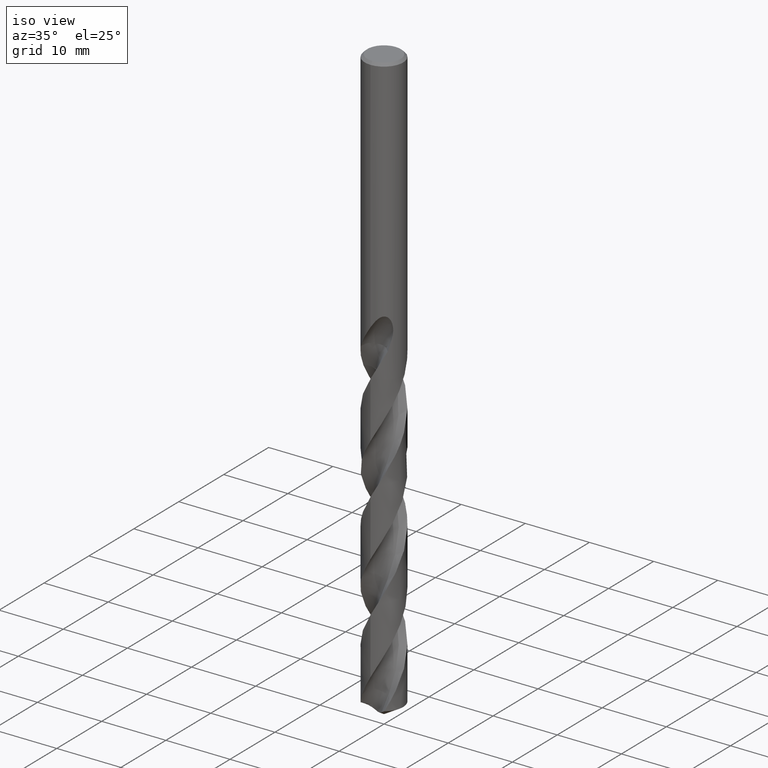
[diagram: clean part render]
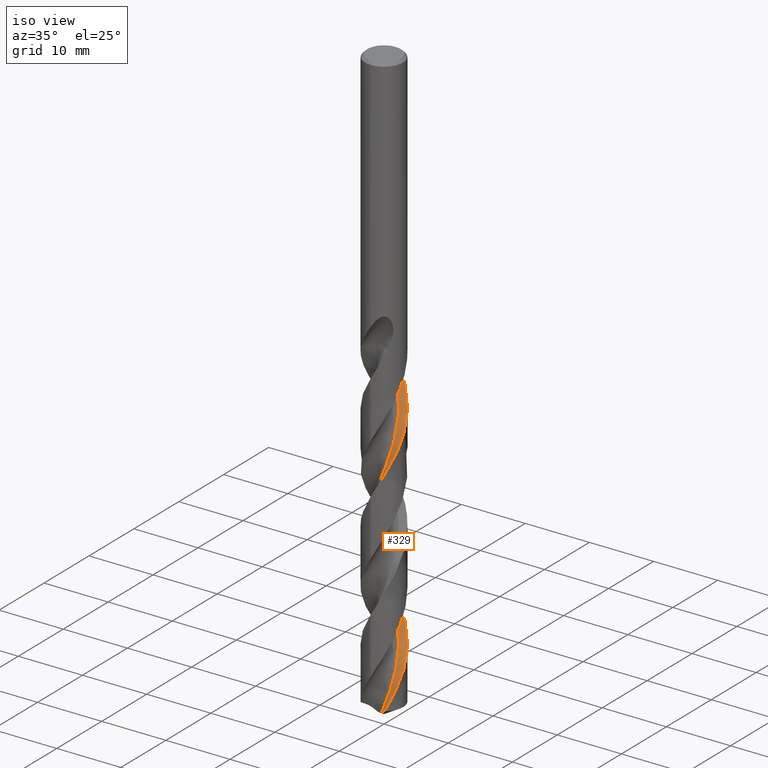
[diagram: same view with one face highlighted and labeled with its STEP entity id]
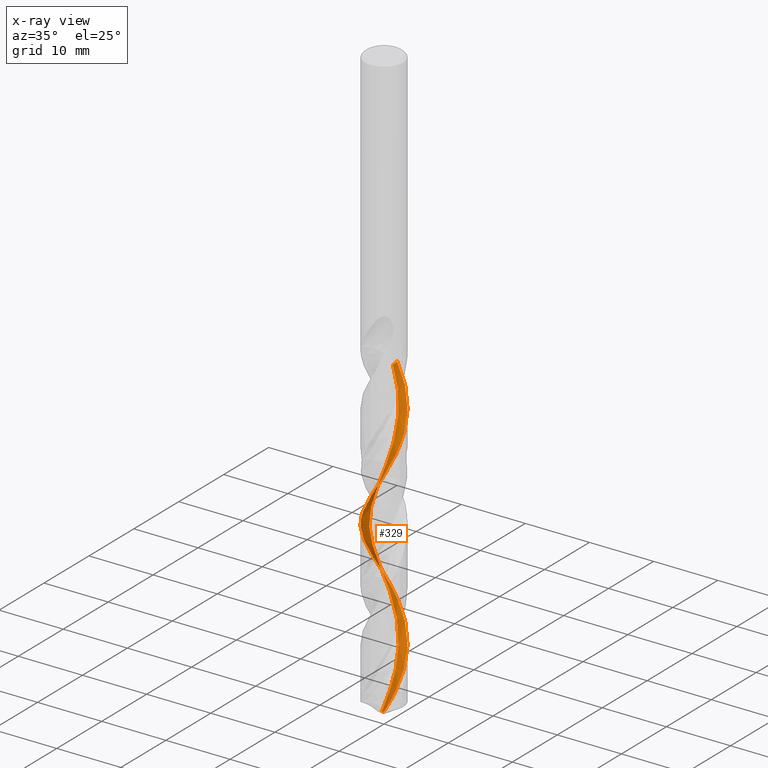
[diagram: x-ray of the same camera — body ghosted, the highlighted face saturated]
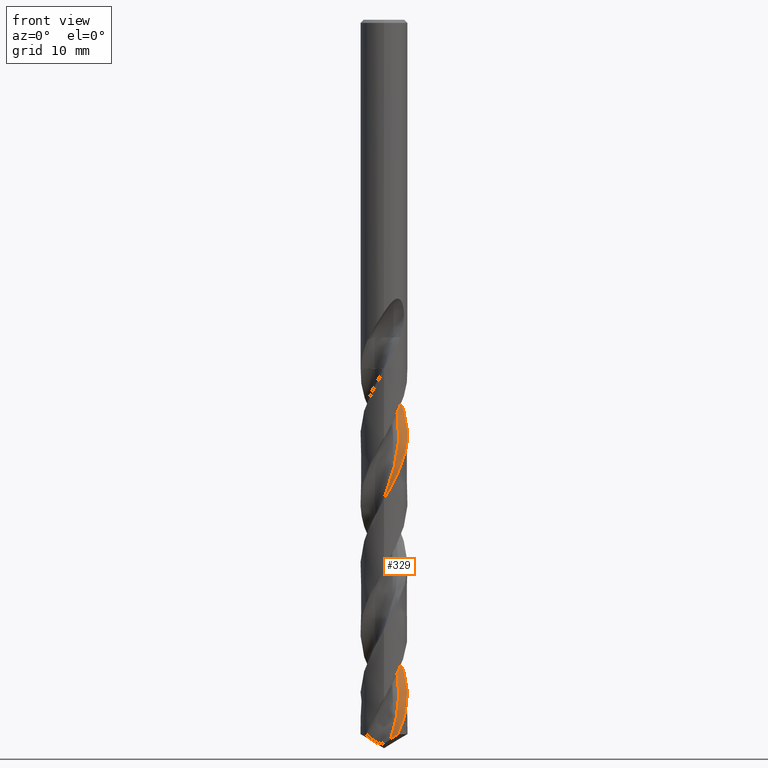
[diagram: same view with one face highlighted and labeled with its STEP entity id]
A machine part, iso view. The second image highlights one B-rep face of the part: STEP entity #329.
The next image is the same camera in x-ray: the body ghosted, the highlighted face saturated — about 0% of this face is hidden behind the body in this view.
A second angle (front view) of the same face is appended — the face is thin or edge-on in the first view.
In plain terms, the highlighted face is a freeform B-spline surface patch.
Its self-contained STEP definition (entity closure, byte-faithful):
#329=ADVANCED_FACE('',(#855),#856,.F.);
#347=EDGE_CURVE('',#771,#653,#876,.T.);
#351=EDGE_CURVE('',#667,#655,#880,.T.);
#437=EDGE_CURVE('',#735,#667,#973,.T.);
#445=VERTEX_POINT('',#981);
#569=EDGE_CURVE('',#655,#445,#1113,.T.);
#585=EDGE_CURVE('',#743,#771,#1129,.T.);
#625=EDGE_CURVE('',#445,#743,#1174,.T.);
#653=VERTEX_POINT('',#1205);
#655=VERTEX_POINT('',#1207);
#667=VERTEX_POINT('',#1220);
#735=VERTEX_POINT('',#1296);
#743=VERTEX_POINT('',#1304);
#759=EDGE_CURVE('',#735,#653,#1323,.T.);
#771=VERTEX_POINT('',#1336);
#855=FACE_OUTER_BOUND('',#1930,.T.);
#856=B_SPLINE_SURFACE_WITH_KNOTS('',3,3,((#1931,#1932,#1933,#1934,#1935,#1936,#1937,#1938,#1939,#1940,#1941,#1942,#1943,#1944,#1945,#1946,#1947,#1948,#1949,#1950,#1951,#1952,#1953,#1954,#1955,#1956,#1957,#1958,#1959,#1960,#1961,#1962,#1963,#1964,#1965,#1966,#1967,#1968,#1969,#1970,#1971,#1972,#1973,#1974,#1975,#1976,#1977,#1978,#1979,#1980,#1981,#1982,#1983,#1984,#1985,#1986,#1987,#1988,#1989,#1990,#1991,#1992,#1993,#1994,#1995,#1996,#1997,#1998,#1999,#2000,#2001,#2002,#2003,#2004),(#2005,#2006,#2007,#2008,#2009,#2010,#2011,#2012,#2013,#2014,#2015,#2016,#2017,#2018,#2019,#2020,#2021,#2022,#2023,#2024,#2025,#2026,#2027,#2028,#2029,#2030,#2031,#2032,#2033,#2034,#2035,#2036,#2037,#2038,#2039,#2040,#2041,#2042,#2043,#2044,#2045,#2046,#2047,#2048,#2049,#2050,#2051,#2052,#2053,#2054,#2055,#2056,#2057,#2058,#2059,#2060,#2061,#2062,#2063,#2064,#2065,#2066,#2067,#2068,#2069,#2070,#2071,#2072,#2073,#2074,#2075,#2076,#2077,#2078),(#2079,#2080,#2081,#2082,#2083,#2084,#2085,#2086,#2087,#2088,#2089,#2090,#2091,#2092,#2093,#2094,#2095,#2096,#2097,#2098,#2099,#2100,#2101,#2102,#2103,#2104,#2105,#2106,#2107,#2108,#2109,#2110,#2111,#2112,#2113,#2114,#2115,#2116,#2117,#2118,#2119,#2120,#2121,#2122,#2123,#2124,#2125,#2126,#2127,#2128,#2129,#2130,#2131,#2132,#2133,#2134,#2135,#2136,#2137,#2138,#2139,#2140,#2141,#2142,#2143,#2144,#2145,#2146,#2147,#2148,#2149,#2150,#2151,#2152),(#2153,#2154,#2155,#2156,#2157,#2158,#2159,#2160,#2161,#2162,#2163,#2164,#2165,#2166,#2167,#2168,#2169,#2170,#2171,#2172,#2173,#2174,#2175,#2176,#2177,#2178,#2179,#2180,#2181,#2182,#2183,#2184,#2185,#2186,#2187,#2188,#2189,#2190,#2191,#2192,#2193,#2194,#2195,#2196,#2197,#2198,#2199,#2200,#2201,#2202,#2203,#2204,#2205,#2206,#2207,#2208,#2209,#2210,#2211,#2212,#2213,#2214,#2215,#2216,#2217,#2218,#2219,#2220,#2221,#2222,#2223,#2224,#2225,#2226)),.UNSPECIFIED.,.F.,.F.,.F.,(4,4),(4,1,2,2,2,2,2,2,2,2,2,2,2,2,2,2,2,2,2,2,2,2,2,2,2,2,2,2,2,2,2,2,2,2,2,1,2,4),(-2.91607693938059E-015,4.0),(0.0,0.522905338961835,1.04581067792367,2.09162135584734,3.13743203377101,4.18324271169468,5.22905338961835,6.27486406754202,8.36648542338936,10.4581067792367,12.549728135084,14.6413494909314,16.7329708467787,18.8245922026261,20.9162135584734,23.0078349143207,25.0994562701681,27.1910776260154,29.2826989818628,31.3743203377101,33.4659416935574,35.5575630494048,37.6491844052521,39.7408057610995,41.8324271169468,43.9240484727941,46.0156698286415,48.1072911844888,50.1989125403362,52.2905338961835,54.3821552520308,56.4737766078782,58.5653979637255,60.6570193195729,62.7486406754202,63.7944513533439,64.8402620312675,66.9318833871149),.UNSPECIFIED.);
#876=B_SPLINE_CURVE_WITH_KNOTS('',3,(#2255,#2256,#2257,#2258,#2259,#2260,#2261,#2262),.UNSPECIFIED.,.F.,.F.,(4,2,2,4),(0.0,1.48434628061744,2.2064992008544,2.92031121372698),.UNSPECIFIED.);
#880=B_SPLINE_CURVE_WITH_KNOTS('',3,(#2267,#2268,#2269,#2270,#2271,#2272,#2273,#2274,#2275,#2276,#2277,#2278,#2279,#2280,#2281,#2282,#2283,#2284,#2285,#2286,#2287,#2288,#2289,#2290,#2291,#2292,#2293,#2294,#2295,#2296,#2297,#2298,#2299,#2300,#2301,#2302,#2303,#2304,#2305,#2306,#2307,#2308,#2309,#2310,#2311,#2312,#2313,#2314,#2315,#2316,#2317,#2318,#2319,#2320,#2321,#2322,#2323,#2324,#2325,#2326,#2327,#2328,#2329,#2330,#2331,#2332,#2333,#2334,#2335,#2336,#2337,#2338,#2339,#2340,#2341,#2342,#2343,#2344,#2345,#2346,#2347,#2348,#2349,#2350,#2351,#2352,#2353,#2354,#2355,#2356,#2357,#2358,#2359,#2360,#2361,#2362,#2363,#2364,#2365,#2366,#2367,#2368,#2369,#2370,#2371,#2372,#2373,#2374,#2375,#2376,#2377,#2378),.UNSPECIFIED.,.F.,.F.,(4,2,2,2,2,2,2,2,2,2,2,2,2,2,2,2,2,2,2,2,2,2,2,2,2,2,2,2,2,2,2,2,2,2,2,2,2,2,2,2,2,2,2,2,2,2,2,2,2,2,2,2,2,2,2,4),(0.0,0.572494951158947,1.82359099780544,2.42255770585194,3.60222100600977,4.78284834608599,5.07257895400081,6.43743896662307,7.27309726631694,8.44766000049982,8.80126579227505,10.0867637409892,10.7114236865127,12.0609044836649,12.9256425960565,14.0990841930642,14.4568973350308,15.7524062199249,16.3768446357501,17.7456146261023,18.56943700085,19.8211433847995,20.1249415379525,21.4607620633179,22.3509297042247,23.5237657938987,23.8825394218448,25.1924763815023,26.1441113458788,27.3190171899607,27.6638680252593,28.9837451173982,29.9097927988623,31.0848423998647,31.4282570425243,32.7359193778982,33.6884425473602,34.8641981882476,35.2033986360254,36.5301465694962,37.4343337722093,38.60808778833,38.9582932950154,40.2783048632536,41.1973655963923,42.3702465501988,42.7242071514487,44.0546999425372,44.9520049005276,46.0193016485695,46.8324724442076,47.6769222417737,48.4202174062024,49.7105221039015,50.6877983249832,53.6638566151624),.UNSPECIFIED.);
#973=B_SPLINE_CURVE_WITH_KNOTS('',3,(#3743,#3744,#3745,#3746,#3747,#3748),.UNSPECIFIED.,.F.,.F.,(4,2,4),(-3.99997966118774,-1.99997852412722,-0.0),.UNSPECIFIED.);
#981=CARTESIAN_POINT('',(-1.75453786845729E-013,-2.99993586654492,-61.248750453509));
#1113=B_SPLINE_CURVE_WITH_KNOTS('',3,(#6408,#6409,#6410,#6411,#6412,#6413,#6414,#6415,#6416,#6417,#6418,#6419,#6420,#6421,#6422,#6423,#6424,#6425,#6426,#6427,#6428,#6429,#6430,#6431,#6432,#6433,#6434,#6435,#6436,#6437,#6438,#6439,#6440,#6441,#6442,#6443,#6444,#6445,#6446,#6447,#6448,#6449,#6450,#6451,#6452,#6453,#6454,#6455,#6456,#6457,#6458,#6459,#6460,#6461,#6462,#6463,#6464,#6465,#6466,#6467,#6468,#6469,#6470,#6471,#6472,#6473,#6474,#6475,#6476,#6477,#6478,#6479,#6480,#6481,#6482,#6483,#6484,#6485,#6486,#6487,#6488,#6489,#6490,#6491,#6492,#6493,#6494,#6495,#6496,#6497,#6498,#6499,#6500,#6501,#6502,#6503,#6504,#6505,#6506,#6507,#6508,#6509,#6510,#6511,#6512,#6513,#6514,#6515,#6516,#6517,#6518,#6519),.UNSPECIFIED.,.F.,.F.,(4,2,2,2,2,2,2,2,2,2,2,2,2,2,2,2,2,2,2,2,2,2,2,2,2,2,2,2,2,2,2,2,2,2,2,2,2,2,2,2,2,2,2,2,2,2,2,2,2,2,2,2,2,2,2,4),(0.0,0.572494951158947,1.82359099780544,2.42255770585194,3.60222100600977,4.78284834608599,5.07257895400081,6.43743896662307,7.27309726631694,8.44766000049982,8.80126579227505,10.0867637409892,10.7114236865127,12.0609044836649,12.9256425960565,14.0990841930642,14.4568973350308,15.7524062199249,16.3768446357501,17.7456146261023,18.56943700085,19.8211433847995,20.1249415379525,21.4607620633179,22.3509297042247,23.5237657938987,23.8825394218448,25.1924763815023,26.1441113458788,27.3190171899607,27.6638680252593,28.9837451173982,29.9097927988623,31.0848423998647,31.4282570425243,32.7359193778982,33.6884425473602,34.8641981882476,35.2033986360254,36.5301465694962,37.4343337722093,38.60808778833,38.9582932950154,40.2783048632536,41.1973655963923,42.3702465501988,42.7242071514487,44.0546999425372,44.9520049005276,46.0193016485695,46.8324724442076,47.6769222417737,48.4202174062024,49.7105221039015,50.6877983249832,53.6638566151624),.UNSPECIFIED.);
#1129=B_SPLINE_CURVE_WITH_KNOTS('',3,(#6730,#6731,#6732,#6733,#6734,#6735,#6736,#6737,#6738,#6739,#6740,#6741,#6742,#6743,#6744,#6745,#6746,#6747,#6748,#6749,#6750,#6751,#6752,#6753,#6754,#6755,#6756,#6757,#6758,#6759,#6760,#6761,#6762,#6763,#6764,#6765,#6766,#6767,#6768,#6769,#6770,#6771,#6772,#6773,#6774,#6775,#6776,#6777,#6778,#6779,#6780,#6781,#6782,#6783,#6784,#6785,#6786,#6787,#6788,#6789,#6790,#6791,#6792,#6793,#6794,#6795,#6796,#6797,#6798,#6799,#6800,#6801,#6802,#6803,#6804,#6805,#6806,#6807,#6808,#6809,#6810,#6811,#6812,#6813,#6814,#6815,#6816,#6817,#6818,#6819,#6820,#6821,#6822,#6823,#6824,#6825,#6826,#6827,#6828,#6829,#6830,#6831,#6832,#6833,#6834,#6835,#6836,#6837,#6838,#6839,#6840,#6841),.UNSPECIFIED.,.F.,.F.,(4,2,2,2,2,2,2,2,2,2,2,2,2,2,2,2,2,2,2,2,2,2,2,2,2,2,2,2,2,2,2,2,2,2,2,2,2,2,2,2,2,2,2,2,2,2,2,2,2,2,2,2,2,2,2,4),(0.0,0.572494951158947,1.82359099780544,2.42255770585194,3.60222100600977,4.78284834608599,5.07257895400081,6.43743896662307,7.27309726631694,8.44766000049982,8.80126579227505,10.0867637409892,10.7114236865127,12.0609044836649,12.9256425960565,14.0990841930642,14.4568973350308,15.7524062199249,16.3768446357501,17.7456146261023,18.56943700085,19.8211433847995,20.1249415379525,21.4607620633179,22.3509297042247,23.5237657938987,23.8825394218448,25.1924763815023,26.1441113458788,27.3190171899607,27.6638680252593,28.9837451173982,29.9097927988623,31.0848423998647,31.4282570425243,32.7359193778982,33.6884425473602,34.8641981882476,35.2033986360254,36.5301465694962,37.4343337722093,38.60808778833,38.9582932950154,40.2783048632536,41.1973655963923,42.3702465501988,42.7242071514487,44.0546999425372,44.9520049005276,46.0193016485695,46.8324724442076,47.6769222417737,48.4202174062024,49.7105221039015,50.6877983249832,53.6638566151624),.UNSPECIFIED.);
#1174=B_SPLINE_CURVE_WITH_KNOTS('',3,(#8226,#8227,#8228,#8229,#8230,#8231,#8232,#8233,#8234,#8235,#8236,#8237,#8238,#8239,#8240,#8241,#8242,#8243,#8244,#8245,#8246,#8247,#8248,#8249,#8250,#8251,#8252,#8253,#8254,#8255,#8256,#8257,#8258,#8259,#8260,#8261,#8262,#8263,#8264,#8265,#8266,#8267,#8268,#8269,#8270,#8271,#8272,#8273,#8274,#8275,#8276,#8277,#8278,#8279,#8280,#8281,#8282,#8283,#8284,#8285,#8286,#8287,#8288,#8289,#8290,#8291,#8292,#8293,#8294,#8295,#8296,#8297,#8298,#8299,#8300,#8301,#8302,#8303,#8304,#8305,#8306,#8307,#8308,#8309,#8310,#8311,#8312,#8313,#8314,#8315,#8316,#8317,#8318,#8319,#8320,#8321,#8322,#8323,#8324,#8325,#8326,#8327,#8328,#8329,#8330,#8331,#8332,#8333,#8334,#8335,#8336,#8337),.UNSPECIFIED.,.F.,.F.,(4,2,2,2,2,2,2,2,2,2,2,2,2,2,2,2,2,2,2,2,2,2,2,2,2,2,2,2,2,2,2,2,2,2,2,2,2,2,2,2,2,2,2,2,2,2,2,2,2,2,2,2,2,2,2,4),(0.0,0.572494951158947,1.82359099780544,2.42255770585194,3.60222100600977,4.78284834608599,5.07257895400081,6.43743896662307,7.27309726631694,8.44766000049982,8.80126579227505,10.0867637409892,10.7114236865127,12.0609044836649,12.9256425960565,14.0990841930642,14.4568973350308,15.7524062199249,16.3768446357501,17.7456146261023,18.56943700085,19.8211433847995,20.1249415379525,21.4607620633179,22.3509297042247,23.5237657938987,23.8825394218448,25.1924763815023,26.1441113458788,27.3190171899607,27.6638680252593,28.9837451173982,29.9097927988623,31.0848423998647,31.4282570425243,32.7359193778982,33.6884425473602,34.8641981882476,35.2033986360254,36.5301465694962,37.4343337722093,38.60808778833,38.9582932950154,40.2783048632536,41.1973655963923,42.3702465501988,42.7242071514487,44.0546999425372,44.9520049005276,46.0193016485695,46.8324724442076,47.6769222417737,48.4202174062024,49.7105221039015,50.6877983249832,53.6638566151624),.UNSPECIFIED.);
#1205=CARTESIAN_POINT('',(0.83742289631574,-1.69677563729889,-91.863066805877));
#1207=CARTESIAN_POINT('',(1.38049338884306E-014,2.99990025500108,-44.619078918365));
#1220=CARTESIAN_POINT('',(-0.0646667570984606,2.99920294156112,-44.505));
#1296=CARTESIAN_POINT('',(0.0382459745224391,1.8903244255457,-44.5049999999996));
#1304=CARTESIAN_POINT('',(4.13384605381169E-014,2.99997147817592,-77.8784626881378));
#1323=B_SPLINE_CURVE_WITH_KNOTS('',3,(#10865,#10866,#10867,#10868,#10869,#10870,#10871,#10872,#10873,#10874,#10875,#10876,#10877,#10878,#10879,#10880,#10881,#10882,#10883,#10884,#10885,#10886,#10887,#10888,#10889,#10890,#10891,#10892,#10893,#10894,#10895,#10896,#10897,#10898,#10899,#10900,#10901,#10902,#10903,#10904,#10905,#10906,#10907,#10908,#10909,#10910,#10911,#10912,#10913,#10914,#10915,#10916,#10917,#10918,#10919,#10920,#10921,#10922,#10923,#10924,#10925,#10926,#10927,#10928,#10929,#10930,#10931,#10932,#10933,#10934,#10935,#10936),.UNSPECIFIED.,.F.,.F.,(4,1,2,2,2,2,1,2,2,2,2,2,2,2,2,2,2,2,2,2,2,2,2,2,2,2,2,2,2,2,2,2,2,2,2,2,4),(0.0,0.522905338961835,1.04581067792367,2.09162135584734,3.13743203377101,4.18324271169468,5.22905338961835,6.27486406754202,8.36648542338936,10.4581067792367,12.549728135084,14.6413494909314,16.7329708467787,18.8245922026261,20.9162135584734,23.0078349143207,25.0994562701681,27.1910776260154,29.2826989818628,31.3743203377101,33.4659416935574,35.5575630494048,37.6491844052521,39.7408057610995,41.8324271169468,43.9240484727941,46.0156698286415,48.1072911844888,50.1989125403362,52.2905338961835,54.3821552520308,56.4737766078782,58.5653979637255,60.6570193195729,62.7486406754202,64.8402620312675,66.9318833871149),.UNSPECIFIED.);
#1336=CARTESIAN_POINT('',(1.75616763038384,-2.43225723433851,-91.1974181429173));
#1930=EDGE_LOOP('',(#11629,#11630,#11631,#11632,#11633,#11634,#11635));
#1931=CARTESIAN_POINT('',(-1.41421356237309,1.4857864376269,-40.541));
#1932=CARTESIAN_POINT('',(-1.30185400355067,1.47749906245359,-40.6774076930066));
#1933=CARTESIAN_POINT('',(-1.11798852060027,1.48224257654486,-40.9497184730531));
#1934=CARTESIAN_POINT('',(-1.01591558324732,1.52476412260121,-41.2216472443918));
#1935=CARTESIAN_POINT('',(-0.918822152935243,1.62124134553567,-41.6316453785971));
#1936=CARTESIAN_POINT('',(-0.846851968955999,1.67881491637216,-41.9053986949884));
#1937=CARTESIAN_POINT('',(-0.691542044640212,1.77874485512912,-42.453834914986));
#1938=CARTESIAN_POINT('',(-0.597747531022009,1.81127832053821,-42.7276901679167));
#1939=CARTESIAN_POINT('',(-0.395207853285814,1.84463654608176,-43.2721068677423));
#1940=CARTESIAN_POINT('',(-0.298258157843705,1.86046422758077,-43.5447643567093));
#1941=CARTESIAN_POINT('',(-0.109483294718146,1.89036672612649,-44.092423034713));
#1942=CARTESIAN_POINT('',(-0.0115812705174228,1.89380865772699,-44.3660015577892));
#1943=CARTESIAN_POINT('',(0.184077661387755,1.88294438246682,-44.9121305072127));
#1944=CARTESIAN_POINT('',(0.281290648237033,1.8702122164557,-45.1852552755334));
#1945=CARTESIAN_POINT('',(0.567275935464938,1.81501790687612,-46.0050821395019));
#1946=CARTESIAN_POINT('',(0.752649662868622,1.74104897248783,-46.5515881336599));
#1947=CARTESIAN_POINT('',(1.09353436715561,1.55579737691821,-47.6446120486874));
#1948=CARTESIAN_POINT('',(1.24763538571423,1.42905743612963,-48.191125621894));
#1949=CARTESIAN_POINT('',(1.51574269445327,1.14852204450897,-49.2841386228271));
#1950=CARTESIAN_POINT('',(1.623841236938,0.98079156700089,-49.8306508478142));
#1951=CARTESIAN_POINT('',(1.79359944581769,0.631783754944172,-50.923673967794));
#1952=CARTESIAN_POINT('',(1.8454408678756,0.439106557756887,-51.4701795977814));
#1953=CARTESIAN_POINT('',(1.90094035794903,0.0550861779540336,-52.5632005810463));
#1954=CARTESIAN_POINT('',(1.89158222128497,-0.144239809761253,-53.1097145515118));
#1955=CARTESIAN_POINT('',(1.82717679835731,-0.526956148104835,-54.2027296069985));
#1956=CARTESIAN_POINT('',(1.75751114362454,-0.71393290590293,-54.7492368592541));
#1957=CARTESIAN_POINT('',(1.57965779834928,-1.0588175357518,-55.8422633877279));
#1958=CARTESIAN_POINT('',(1.45631725543132,-1.21567071346341,-56.3887736903177));
#1959=CARTESIAN_POINT('',(1.18178131557385,-1.48992291543867,-57.481786446897));
#1960=CARTESIAN_POINT('',(1.0164943649566,-1.60171312483033,-58.028298225387));
#1961=CARTESIAN_POINT('',(0.671356018521304,-1.77917905520031,-59.1213238886032));
#1962=CARTESIAN_POINT('',(0.479872575465099,-1.83527545996652,-59.6678299777857));
#1963=CARTESIAN_POINT('',(0.0971726174031473,-1.89925976030074,-60.7608467191279));
#1964=CARTESIAN_POINT('',(-0.102312803697491,-1.89431518573932,-61.307361411573));
#1965=CARTESIAN_POINT('',(-0.486371296223198,-1.83836816015974,-62.4003809178658));
#1966=CARTESIAN_POINT('',(-0.674842369563026,-1.7728645899382,-62.9468860839283));
#1967=CARTESIAN_POINT('',(-1.02358335898125,-1.60276261930452,-64.0399095301507));
#1968=CARTESIAN_POINT('',(-1.18313243610789,-1.48292076931626,-64.5864229149088));
#1969=CARTESIAN_POINT('',(-1.46336683284481,-1.21444271824927,-65.6794365660237));
#1970=CARTESIAN_POINT('',(-1.57878739206435,-1.05167755236239,-66.2259449377263));
#1971=CARTESIAN_POINT('',(-1.76390587939921,-0.710622129680991,-67.3189719199328));
#1972=CARTESIAN_POINT('',(-1.82423008310954,-0.520422533149966,-67.8654809506026));
#1973=CARTESIAN_POINT('',(-1.89661741369924,-0.139195510369277,-68.9584942207584));
#1974=CARTESIAN_POINT('',(-1.89608990583118,0.0603473419099679,-69.5050071198691));
#1975=CARTESIAN_POINT('',(-1.84868956898375,0.445542881536778,-70.5980314970386));
#1976=CARTESIAN_POINT('',(-1.78737819013519,0.635419424883436,-71.1445368860463));
#1977=CARTESIAN_POINT('',(-1.62505637745491,0.987841434180108,-72.2375554279032));
#1978=CARTESIAN_POINT('',(-1.50877347504161,1.15000564457095,-72.7840702207215));
#1979=CARTESIAN_POINT('',(-1.24651521477071,1.4360996806775,-73.8770877891264));
#1980=CARTESIAN_POINT('',(-1.08635148709345,1.55509570795928,-74.4235934790111));
#1981=CARTESIAN_POINT('',(-0.749545329334375,1.74777006753221,-75.5166184219717));
#1982=CARTESIAN_POINT('',(-0.560722027468897,1.81229158573676,-76.063130780686));
#1983=CARTESIAN_POINT('',(-0.181138989572899,1.89303018388758,-77.1561436905902));
#1984=CARTESIAN_POINT('',(0.0183607978951156,1.89692207338435,-77.7026533489767));
#1985=CARTESIAN_POINT('',(0.404487822168313,1.85813724209436,-78.7956802425075));
#1986=CARTESIAN_POINT('',(0.595679907345455,1.80104475102759,-79.3421880037431));
#1987=CARTESIAN_POINT('',(0.951609631592197,1.64651780464128,-80.4352022691484));
#1988=CARTESIAN_POINT('',(1.11630640553779,1.53385291306321,-80.981716205502));
#1989=CARTESIAN_POINT('',(1.40813989628116,1.27799813802455,-82.0747387590713));
#1990=CARTESIAN_POINT('',(1.53065598826147,1.12051409129064,-82.6212434021717));
#1991=CARTESIAN_POINT('',(1.73076712076348,0.788093963363503,-83.7142649488994));
#1992=CARTESIAN_POINT('',(1.79944850848857,0.600735278406292,-84.2607804474952));
#1993=CARTESIAN_POINT('',(1.88850742996132,0.222984780589389,-85.3537909999115));
#1994=CARTESIAN_POINT('',(1.89683815281431,0.023638908809135,-85.9002952569236));
#1995=CARTESIAN_POINT('',(1.86669957394919,-0.363227965308785,-86.9933434045045));
#1996=CARTESIAN_POINT('',(1.81378792772794,-0.555658133624825,-87.5398601007499));
#1997=CARTESIAN_POINT('',(1.66722443416998,-0.914897017661303,-88.6327878727842));
#1998=CARTESIAN_POINT('',(1.55834370266813,-1.08206458606829,-89.1792823430698));
#1999=CARTESIAN_POINT('',(1.37068404314872,-1.30500794451793,-89.9992369349008));
#2000=CARTESIAN_POINT('',(1.23060464874563,-1.44272720900435,-90.5459173492346));
#2001=CARTESIAN_POINT('',(1.07263676481885,-1.55775154255247,-91.0922037733748));
#2002=CARTESIAN_POINT('',(0.829782661044681,-1.71517386708294,-91.9115430005289));
#2003=CARTESIAN_POINT('',(0.641448585261699,-1.7863127365287,-92.4579864352039));
#2004=CARTESIAN_POINT('',(0.447989299316343,-1.82801826226352,-93.0040184069299));
#2005=CARTESIAN_POINT('',(-2.35702260395726,2.42859547921403,-40.541));
#2006=CARTESIAN_POINT('',(-2.24608353999392,2.4188875988609,-40.6773678833375));
#2007=CARTESIAN_POINT('',(-2.05102293071519,2.43513653842371,-40.9489678791049));
#2008=CARTESIAN_POINT('',(-1.90784497226789,2.51659040941025,-41.2197137330871));
#2009=CARTESIAN_POINT('',(-1.72266731988364,2.68779441391879,-41.6296956508318));
#2010=CARTESIAN_POINT('',(-1.58837728135308,2.78950261392757,-41.9038956920709));
#2011=CARTESIAN_POINT('',(-1.30283850204388,2.96609594861429,-42.4538939145747));
#2012=CARTESIAN_POINT('',(-1.14658833107999,3.02810142195046,-42.7282098514586));
#2013=CARTESIAN_POINT('',(-0.824841232549934,3.10847847628177,-43.270960742789));
#2014=CARTESIAN_POINT('',(-0.663364379433447,3.14479408534952,-43.5431494811177));
#2015=CARTESIAN_POINT('',(-0.33629797646067,3.2061782837934,-44.091719480341));
#2016=CARTESIAN_POINT('',(-0.169845004390979,3.21948317221782,-44.3655529407433));
#2017=CARTESIAN_POINT('',(0.162343510865304,3.21785447183046,-44.9113797815061));
#2018=CARTESIAN_POINT('',(0.328258365217357,3.20451872978764,-45.1844018343136));
#2019=CARTESIAN_POINT('',(0.82133257536345,3.13123802759797,-46.0042782378275));
#2020=CARTESIAN_POINT('',(1.13974924737719,3.02448343476999,-46.5507809533369));
#2021=CARTESIAN_POINT('',(1.73670931090385,2.73196510015289,-47.6438078407372));
#2022=CARTESIAN_POINT('',(2.0076040768079,2.53336086860106,-48.1903244118005));
#2023=CARTESIAN_POINT('',(2.48683200179714,2.07265316421534,-49.2833321285155));
#2024=CARTESIAN_POINT('',(2.68424238474118,1.80090099355157,-49.8298461357941));
#2025=CARTESIAN_POINT('',(3.0001311059917,1.21599771476862,-50.9228718978829));
#2026=CARTESIAN_POINT('',(3.10534344165578,0.8970251791058,-51.4693742784468));
#2027=CARTESIAN_POINT('',(3.22814232151485,0.243695693617464,-52.5623959222389));
#2028=CARTESIAN_POINT('',(3.23110501913316,-0.092185459724179,-53.1089131880984));
#2029=CARTESIAN_POINT('',(3.1487152550588,-0.751815389095561,-54.2019246106851));
#2030=CARTESIAN_POINT('',(3.04917462654048,-1.07260348570766,-54.7484295608432));
#2031=CARTESIAN_POINT('',(2.76977033239377,-1.67579869908218,-55.8414617037989));
#2032=CARTESIAN_POINT('',(2.57718311108897,-1.95099210927331,-56.3879720333402));
#2033=CARTESIAN_POINT('',(2.12719853668102,-2.44030100950828,-57.4809795057013));
#2034=CARTESIAN_POINT('',(1.85989227712105,-2.64368820835218,-58.0274926316443));
#2035=CARTESIAN_POINT('',(1.28214091295115,-2.97248044117471,-59.1205229185513));
#2036=CARTESIAN_POINT('',(0.965573404109807,-3.08473075130708,-59.6670257799852));
#2037=CARTESIAN_POINT('',(0.315122689327116,-3.2219599712445,-60.7600405397456));
#2038=CARTESIAN_POINT('',(-0.020609831637305,-3.23235614667774,-61.3065586858648));
#2039=CARTESIAN_POINT('',(-0.681896904133298,-3.16456310116634,-62.3995781921577));
#2040=CARTESIAN_POINT('',(-1.0048108213766,-3.07215832785052,-62.9460792867935));
#2041=CARTESIAN_POINT('',(-1.61407623403604,-2.80623923917252,-64.0391060356522));
#2042=CARTESIAN_POINT('',(-1.89346677593976,-2.61978387131252,-64.5856218455705));
#2043=CARTESIAN_POINT('',(-2.3925606915689,-2.1806858464628,-65.6786308729944));
#2044=CARTESIAN_POINT('',(-2.60181912711204,-1.91795882043979,-66.2251381125622));
#2045=CARTESIAN_POINT('',(-2.94339902103812,-1.34766806879133,-67.3181703789869));
#2046=CARTESIAN_POINT('',(-3.06262886887874,-1.03365564394425,-67.8646789782863));
#2047=CARTESIAN_POINT('',(-3.21416354948476,-0.386392593239039,-68.9576869642239));
#2048=CARTESIAN_POINT('',(-3.2319930554243,-0.0509782845945417,-69.5042021218724));
#2049=CARTESIAN_POINT('',(-3.17888980868263,0.611652167208919,-70.5972304622056));
#2050=CARTESIAN_POINT('',(-3.09366034210023,0.936536207414276,-71.1437322731908));
#2051=CARTESIAN_POINT('',(-2.84131068521059,1.55154736563625,-72.2367494939932));
#2052=CARTESIAN_POINT('',(-2.66108307466171,1.83499598195156,-72.7832687562876));
#2053=CARTESIAN_POINT('',(-2.23310830608932,2.34365567290352,-73.8762836825834));
#2054=CARTESIAN_POINT('',(-1.97508752361255,2.5586844459275,-74.4227865317115));
#2055=CARTESIAN_POINT('',(-1.41253779045712,2.91287844736913,-75.5158154378358));
#2056=CARTESIAN_POINT('',(-1.10123402365384,3.03902756715844,-76.0623297089589));
#2057=CARTESIAN_POINT('',(-0.457469553279226,3.2047734242956,-77.1553373346449));
#2058=CARTESIAN_POINT('',(-0.122539511688313,3.23003209216876,-77.7018462200489));
#2059=CARTESIAN_POINT('',(0.54111349495906,3.19168997928234,-78.7948797188524));
#2060=CARTESIAN_POINT('',(0.86781025316465,3.11367060859182,-79.3413857428043));
#2061=CARTESIAN_POINT('',(1.48823854554612,2.87495805786166,-80.4343947239914));
#2062=CARTESIAN_POINT('',(1.77560462243003,2.70105266554674,-80.9809120726215));
#2063=CARTESIAN_POINT('',(2.29362040252674,2.28445135452744,-82.0739372682999));
#2064=CARTESIAN_POINT('',(2.51431599537422,2.031259809631,-82.6204382102171));
#2065=CARTESIAN_POINT('',(2.88091740259306,1.47671129591203,-83.7134597569448));
#2066=CARTESIAN_POINT('',(3.01391769769128,1.16826844445689,-84.2599786663555));
#2067=CARTESIAN_POINT('',(3.19380229775118,0.528319086766089,-85.3529852556082));
#2068=CARTESIAN_POINT('',(3.22650132299561,0.194041937869884,-85.8994865493594));
#2069=CARTESIAN_POINT('',(3.20295088441709,-0.470318057390465,-86.9925505495949));
#2070=CARTESIAN_POINT('',(3.13211639828185,-0.798662730510869,-87.5390615673583));
#2071=CARTESIAN_POINT('',(2.90724450690799,-1.42419632146448,-88.6319483867017));
#2072=CARTESIAN_POINT('',(2.73983016151149,-1.71536761004983,-89.1784742115747));
#2073=CARTESIAN_POINT('',(2.43555583651126,-2.11038032488865,-89.9985090574691));
#2074=CARTESIAN_POINT('',(2.20971202816622,-2.35553155845438,-90.5452323320103));
#2075=CARTESIAN_POINT('',(1.95012317533576,-2.5640725163132,-91.09133826351));
#2076=CARTESIAN_POINT('',(1.54222055242538,-2.85084525649072,-91.9105338259826));
#2077=CARTESIAN_POINT('',(1.23514072727697,-2.98772846495542,-92.4573190897476));
#2078=CARTESIAN_POINT('',(0.915710757958352,-3.07662300845774,-93.0032420744738));
#2079=CARTESIAN_POINT('',(-3.29983164553511,3.37140452078597,-40.541));
#2080=CARTESIAN_POINT('',(-3.19031309254888,3.3602761360908,-40.6773280610656));
#2081=CARTESIAN_POINT('',(-2.98405734090871,3.38803049318295,-40.948217299096));
#2082=CARTESIAN_POINT('',(-2.79977434507653,3.50841670957091,-41.2177802064953));
#2083=CARTESIAN_POINT('',(-2.52651251927161,3.75434745558765,-41.6277459536316));
#2084=CARTESIAN_POINT('',(-2.32990256025922,3.90019031269341,-41.9023927110458));
#2085=CARTESIAN_POINT('',(-1.91413499294542,4.15344704087934,-42.4539528922778));
#2086=CARTESIAN_POINT('',(-1.69542912543021,4.24492450343415,-42.7287295317483));
#2087=CARTESIAN_POINT('',(-1.25447461751587,4.37232042642379,-43.2698146210794));
#2088=CARTESIAN_POINT('',(-1.02847070689076,4.42912387344392,-43.5415346000384));
#2089=CARTESIAN_POINT('',(-0.563112552371772,4.52198991108498,-44.0910159314512));
#2090=CARTESIAN_POINT('',(-0.328108771258342,4.54515774705157,-44.3651042340074));
#2091=CARTESIAN_POINT('',(0.140609393297534,4.55276450086746,-44.9106291454613));
#2092=CARTESIAN_POINT('',(0.375226059542335,4.53882527722286,-45.1835484904664));
#2093=CARTESIAN_POINT('',(1.07538926053307,4.44745808011308,-46.0034741414621));
#2094=CARTESIAN_POINT('',(1.52684878153672,4.30791783840039,-46.5499736467802));
#2095=CARTESIAN_POINT('',(2.37988430496741,3.90813288203205,-47.6430037590026));
#2096=CARTESIAN_POINT('',(2.76757269922639,3.63766432364191,-48.1895231210068));
#2097=CARTESIAN_POINT('',(3.45792137780597,2.99678426134202,-49.2825257148622));
#2098=CARTESIAN_POINT('',(3.7446435237537,2.62101044163015,-49.8290414653707));
#2099=CARTESIAN_POINT('',(4.20666277492651,1.80021165307007,-50.9220697863421));
#2100=CARTESIAN_POINT('',(4.36524600487133,1.35494373430276,-51.4685685438579));
#2101=CARTESIAN_POINT('',(4.55534429563536,0.432305275418106,-52.5615916786334));
#2102=CARTESIAN_POINT('',(4.57062778127412,-0.0401313283339337,-53.1081121719534));
#2103=CARTESIAN_POINT('',(4.47025374741892,-0.976674411464061,-54.2011192671865));
#2104=CARTESIAN_POINT('',(4.34083819688579,-1.43127406031764,-54.747622703412));
#2105=CARTESIAN_POINT('',(3.95988277903845,-2.29277986760048,-55.8406595789465));
#2106=CARTESIAN_POINT('',(3.69804894360131,-2.68631351907353,-56.387170477523));
#2107=CARTESIAN_POINT('',(3.07261578096442,-3.39067908956597,-57.480172463363));
#2108=CARTESIAN_POINT('',(2.70329020341934,-3.68566324936324,-58.0266870196085));
#2109=CARTESIAN_POINT('',(1.89292579324736,-4.16578186965025,-59.1197219668162));
#2110=CARTESIAN_POINT('',(1.45127425037361,-4.33418597832354,-59.6662222402193));
#2111=CARTESIAN_POINT('',(0.533072743653756,-4.54466024650289,-60.7592337024789));
#2112=CARTESIAN_POINT('',(0.061093187014497,-4.57039699015086,-61.3057559799558));
#2113=CARTESIAN_POINT('',(-0.877422558619153,-4.49075815963448,-62.3987754465345));
#2114=CARTESIAN_POINT('',(-1.33477906763124,-4.37145222064152,-62.9452731197024));
#2115=CARTESIAN_POINT('',(-2.20456931460279,-4.00971570419589,-64.0383019112087));
#2116=CARTESIAN_POINT('',(-2.60380111847207,-3.75664702060973,-64.5848208068028));
#2117=CARTESIAN_POINT('',(-3.32175454757505,-3.14692892740217,-65.677825149371));
#2118=CARTESIAN_POINT('',(-3.62485085404578,-2.78424004886498,-66.2243310253875));
#2119=CARTESIAN_POINT('',(-4.12289217078111,-1.9847140475437,-67.3173690999936));
#2120=CARTESIAN_POINT('',(-4.3010276638875,-1.54688866901651,-67.8638768280426));
#2121=CARTESIAN_POINT('',(-4.53170967605945,-0.633589761805996,-68.9568798856542));
#2122=CARTESIAN_POINT('',(-4.56789625146609,-0.162303780298501,-69.5033976403635));
#2123=CARTESIAN_POINT('',(-4.50909000196831,0.777761322096296,-70.5964289109113));
#2124=CARTESIAN_POINT('',(-4.39994251303207,1.2376529525241,-71.1429271730096));
#2125=CARTESIAN_POINT('',(-4.05756497400848,2.11525333449055,-72.2359440472995));
#2126=CARTESIAN_POINT('',(-3.81339264065421,2.51998637270083,-72.7824666387513));
#2127=CARTESIAN_POINT('',(-3.21970143103541,3.25121161176525,-73.8754802290647));
#2128=CARTESIAN_POINT('',(-2.86382349311225,3.5622732318662,-74.4219794286459));
#2129=CARTESIAN_POINT('',(-2.07553031860777,4.07798677927211,-75.5150126093395));
#2130=CARTESIAN_POINT('',(-1.64174604679771,4.26576345600458,-76.0615282306657));
#2131=CARTESIAN_POINT('',(-0.73380009003514,4.51651675726253,-77.1545313852096));
#2132=CARTESIAN_POINT('',(-0.263439855880787,4.56314206548367,-77.701040569425));
#2133=CARTESIAN_POINT('',(0.677739202330993,4.52524276191414,-78.7940777169812));
#2134=CARTESIAN_POINT('',(1.13994071065201,4.42629646610238,-79.3405821839789));
#2135=CARTESIAN_POINT('',(2.02486734784292,4.10339831112539,-80.4335884765227));
#2136=CARTESIAN_POINT('',(2.43490275803531,3.86825251262188,-80.9801084097362));
#2137=CARTESIAN_POINT('',(3.17910099004112,3.29090447647995,-82.0731353075604));
#2138=CARTESIAN_POINT('',(3.49797611844343,2.94200555589569,-82.6196324596259));
#2139=CARTESIAN_POINT('',(4.03106756847418,2.16532860055382,-83.7126551237345));
#2140=CARTESIAN_POINT('',(4.22838688708165,1.73580151366662,-84.2591788298604));
#2141=CARTESIAN_POINT('',(4.4990971653458,0.833653489787106,-85.3521775669961));
#2142=CARTESIAN_POINT('',(4.55616439863439,0.364444986083535,-85.8986792269412));
#2143=CARTESIAN_POINT('',(4.53920228941841,-0.577408168600927,-86.9917563096128));
#2144=CARTESIAN_POINT('',(4.4504448425109,-1.04166744096696,-87.5382612060726));
#2145=CARTESIAN_POINT('',(4.14726460599819,-1.93349551169785,-88.6311107280831));
#2146=CARTESIAN_POINT('',(3.92131666613624,-2.3486705706896,-89.177666022688));
#2147=CARTESIAN_POINT('',(3.50042760699181,-2.91575273692517,-89.9977812087209));
#2148=CARTESIAN_POINT('',(3.18881939414526,-3.26833589165497,-90.5445476579836));
#2149=CARTESIAN_POINT('',(2.82760963562189,-3.57039349093598,-91.0904720382736));
#2150=CARTESIAN_POINT('',(2.25465834432388,-3.98651664418295,-91.9095260819196));
#2151=CARTESIAN_POINT('',(1.82883283030343,-4.189144247098,-92.4566530845139));
#2152=CARTESIAN_POINT('',(1.38343221661672,-4.32522775463702,-93.0024657418489));
#2153=CARTESIAN_POINT('',(-4.24264068711928,4.3142135623731,-40.541));
#2154=CARTESIAN_POINT('',(-4.1345426186714,4.30166469313958,-40.6772882642975));
#2155=CARTESIAN_POINT('',(-3.91709174586326,4.3409244395807,-40.9474666922468));
#2156=CARTESIAN_POINT('',(-3.69170375473857,4.50024300670069,-41.2158467080915));
#2157=CARTESIAN_POINT('',(-3.33035764493705,4.8209005033293,-41.6257962000645));
#2158=CARTESIAN_POINT('',(-3.07142785201482,5.01087807217326,-41.9008896978076));
#2159=CARTESIAN_POINT('',(-2.52543147099056,5.34079807244008,-42.4540119021873));
#2160=CARTESIAN_POINT('',(-2.24426992548819,5.46174761516714,-42.7292492152903));
#2161=CARTESIAN_POINT('',(-1.68410799677999,5.63616234630306,-43.2686684961261));
#2162=CARTESIAN_POINT('',(-1.39357696976346,5.71345376217489,-43.5399197244468));
#2163=CARTESIAN_POINT('',(-0.789927192831342,5.83780143778968,-44.0903123770792));
#2164=CARTESIAN_POINT('',(-0.486372525773375,5.87083222025944,-44.3646556169615));
#2165=CARTESIAN_POINT('',(0.11887526341656,5.88767463151405,-44.9098784197547));
#2166=CARTESIAN_POINT('',(0.422193755881182,5.87313179055481,-45.1826950492466));
#2167=CARTESIAN_POINT('',(1.32944594171454,5.76367820083492,-46.0026702397877));
#2168=CARTESIAN_POINT('',(1.91394836604528,5.59135234196551,-46.5491663838914));
#2169=CARTESIAN_POINT('',(3.02305924871565,5.08430056398378,-47.6421996336182));
#2170=CARTESIAN_POINT('',(3.5275413490371,4.7419676941889,-48.1887220760451));
#2171=CARTESIAN_POINT('',(4.42901072643279,3.92091544297282,-49.2817190554187));
#2172=CARTESIAN_POINT('',(4.80504471283983,3.44111984753935,-49.8282367533505));
#2173=CARTESIAN_POINT('',(5.41319439381757,2.38442563353599,-50.9212677164311));
#2174=CARTESIAN_POINT('',(5.62514870250038,1.81286235565167,-51.4677632245233));
#2175=CARTESIAN_POINT('',(5.88254613535232,0.620914791081537,-52.5607870198261));
#2176=CARTESIAN_POINT('',(5.91015066168822,0.011922939137231,-53.1073106434082));
#2177=CARTESIAN_POINT('',(5.7917921215545,-1.20153356988888,-54.200314436005));
#2178=CARTESIAN_POINT('',(5.63250159723582,-1.78994459883941,-54.7468154050011));
#2179=CARTESIAN_POINT('',(5.14999539564885,-2.90976107221382,-55.8398578950174));
#2180=CARTESIAN_POINT('',(4.81891477861748,-3.42163491488344,-56.3863691508091));
#2181=CARTESIAN_POINT('',(4.01803302271307,-4.34105718363558,-57.4793651919036));
#2182=CARTESIAN_POINT('',(3.54668807430085,-4.72763825031918,-58.0258814258658));
#2183=CARTESIAN_POINT('',(2.50371072896016,-5.35908333819056,-59.1189209967644));
#2184=CARTESIAN_POINT('',(1.93697507901832,-5.58364120773967,-59.6654180424188));
#2185=CARTESIAN_POINT('',(0.751022815577725,-5.86736051937109,-60.7584275230966));
#2186=CARTESIAN_POINT('',(0.142796241640592,-5.90843797173076,-61.3049535845113));
#2187=CARTESIAN_POINT('',(-1.07294824909516,-5.8169530799996,-62.3979723905627));
#2188=CARTESIAN_POINT('',(-1.66474747816185,-5.67074585534645,-62.9444663225675));
#2189=CARTESIAN_POINT('',(-2.79506223094054,-5.21319242727128,-64.0374984167102));
#2190=CARTESIAN_POINT('',(-3.31413545830394,-4.89351004004007,-64.584020067728));
#2191=CARTESIAN_POINT('',(-4.25094840629914,-4.1131721381816,-65.6770191260781));
#2192=CARTESIAN_POINT('',(-4.64788258909347,-3.65052131694239,-66.2235238699598));
#2193=CARTESIAN_POINT('',(-5.30238531242002,-2.62175998665404,-67.3165678893114));
#2194=CARTESIAN_POINT('',(-5.5394264496567,-2.0601217798108,-67.8630748557263));
#2195=CARTESIAN_POINT('',(-5.84925581184497,-0.880786844675758,-68.9560726291196));
#2196=CARTESIAN_POINT('',(-5.90379927721034,-0.273629365520056,-69.5025926423668));
#2197=CARTESIAN_POINT('',(-5.83929036551605,0.943870566485482,-70.5956278760782));
#2198=CARTESIAN_POINT('',(-5.70622468563859,1.5387697763379,-71.1421225601541));
#2199=CARTESIAN_POINT('',(-5.27381926112268,2.67895922466374,-72.2351381133894));
#2200=CARTESIAN_POINT('',(-4.9657023434817,3.20497671008143,-72.7816645137901));
#2201=CARTESIAN_POINT('',(-4.20629441914664,4.15876760399127,-73.8746767830489));
#2202=CARTESIAN_POINT('',(-3.75255955027283,4.56586192855146,-74.4211724813463));
#2203=CARTESIAN_POINT('',(-2.73852275908904,5.24309520039198,-75.5142096252035));
#2204=CARTESIAN_POINT('',(-2.1822580842656,5.49249954063364,-76.0607278194658));
#2205=CARTESIAN_POINT('',(-1.01013061245851,5.82825989446317,-77.153724368737));
#2206=CARTESIAN_POINT('',(-0.404340124181261,5.89625200170217,-77.7002334404972));
#2207=CARTESIAN_POINT('',(0.814364833838785,5.85879558166803,-78.793277193326));
#2208=CARTESIAN_POINT('',(1.41207109775416,5.73892228238364,-79.33977992304));
#2209=CARTESIAN_POINT('',(2.56149622051389,5.33183860562873,-80.4327809313657));
#2210=CARTESIAN_POINT('',(3.09420093364459,5.03545220318098,-80.9793042768558));
#2211=CARTESIAN_POINT('',(4.06458153756966,4.29735775490727,-82.0723338167891));
#2212=CARTESIAN_POINT('',(4.48163616683914,3.85275127423605,-82.618826607144));
#2213=CARTESIAN_POINT('',(5.18121780902081,2.85394593310235,-83.7118505923071));
#2214=CARTESIAN_POINT('',(5.44285609692585,2.30333463843426,-84.2583770487207));
#2215=CARTESIAN_POINT('',(5.80439201249419,1.13898783724676,-85.3513718226927));
#2216=CARTESIAN_POINT('',(5.88582767202308,0.534848015144284,-85.8978711799043));
#2217=CARTESIAN_POINT('',(5.87545349667892,-0.684498260682607,-86.990962794176));
#2218=CARTESIAN_POINT('',(5.76877327178186,-1.28467207913596,-87.5374633332082));
#2219=CARTESIAN_POINT('',(5.38728472001916,-2.44279477421807,-88.6302705814734));
#2220=CARTESIAN_POINT('',(5.10280308369665,-2.98197355338818,-89.1768585517202));
#2221=CARTESIAN_POINT('',(4.56529942099583,-3.72112513793737,-89.9970530010256));
#2222=CARTESIAN_POINT('',(4.16792677872622,-4.18114026174648,-90.5438626407594));
#2223=CARTESIAN_POINT('',(3.70509601517659,-4.57671440277227,-91.0896068586724));
#2224=CARTESIAN_POINT('',(2.96709629762902,-5.12218815743959,-91.908516246846));
#2225=CARTESIAN_POINT('',(2.42252493103575,-5.39056001680768,-92.4559857390575));
#2226=CARTESIAN_POINT('',(1.85115367525873,-5.57383250083124,-93.0016894093928));
#2255=CARTESIAN_POINT('',(3.00589949094242,-2.99408888484493,-90.450764290426));
#2256=CARTESIAN_POINT('',(2.58768466772874,-2.8670806055868,-90.6826577546099));
#2257=CARTESIAN_POINT('',(2.18727736706257,-2.69163496224347,-90.9184477166911));
#2258=CARTESIAN_POINT('',(1.63607023971673,-2.36074046791166,-91.2748666499872));
#2259=CARTESIAN_POINT('',(1.46355917299092,-2.24180527613329,-91.3919264100653));
#2260=CARTESIAN_POINT('',(1.13615430829703,-1.98322481165719,-91.6273331884089));
#2261=CARTESIAN_POINT('',(0.98200646840236,-1.84459625849771,-91.7449711102208));
#2262=CARTESIAN_POINT('',(0.837422896391904,-1.69677563724539,-91.8630668058925));
#2267=CARTESIAN_POINT('',(-0.0649300444789005,2.99919725219845,-44.5045353086641));
#2268=CARTESIAN_POINT('',(0.0291366412256851,3.00123407076455,-44.6705594900349));
#2269=CARTESIAN_POINT('',(0.123269827804259,2.99884489596038,-44.8363290979425));
#2270=CARTESIAN_POINT('',(0.422342480634308,2.9771394801699,-45.3651339046317));
#2271=CARTESIAN_POINT('',(0.625365675183285,2.94118751074893,-45.7271818575132));
#2272=CARTESIAN_POINT('',(0.917659461304141,2.85779771723618,-46.2637921770107));
#2273=CARTESIAN_POINT('',(1.01093239007831,2.82615213260156,-46.4374081814791));
#2274=CARTESIAN_POINT('',(1.28286103048371,2.71869569535869,-46.9532030023539));
#2275=CARTESIAN_POINT('',(1.455834824799,2.63012345546762,-47.2942948693464));
#2276=CARTESIAN_POINT('',(1.78231989642019,2.42082846132127,-47.978895049942));
#2277=CARTESIAN_POINT('',(1.93514694491727,2.30050818951586,-48.3204451702406));
#2278=CARTESIAN_POINT('',(2.10971946107097,2.13326222687704,-48.7468180096853));
#2279=CARTESIAN_POINT('',(2.14331945924542,2.09950107808725,-48.8308109332914));
#2280=CARTESIAN_POINT('',(2.33050321861366,1.90224453945209,-49.3107079255715));
#2281=CARTESIAN_POINT('',(2.46621806920848,1.72267298656208,-49.7056965470931));
#2282=CARTESIAN_POINT('',(2.65071335131691,1.41140882913588,-50.3438870302089));
#2283=CARTESIAN_POINT('',(2.71254936717009,1.2885693676739,-50.5859125733228));
#2284=CARTESIAN_POINT('',(2.84049914629882,0.984024188332824,-51.1690503442263));
#2285=CARTESIAN_POINT('',(2.89793966572669,0.799214146509755,-51.5089732617366));
#2286=CARTESIAN_POINT('',(2.94904809179835,0.553165797593487,-51.9521698582012));
#2287=CARTESIAN_POINT('',(2.95921362647923,0.49591403708295,-52.0546637414967));
#2288=CARTESIAN_POINT('',(2.99859215639286,0.229357387775424,-52.5301266313669));
#2289=CARTESIAN_POINT('',(3.00730558496706,0.0175772593630815,-52.9023939469137));
#2290=CARTESIAN_POINT('',(2.9870583668684,-0.295887453694642,-53.4564739787933));
#2291=CARTESIAN_POINT('',(2.97517782701931,-0.39796991389124,-53.6374219215489));
#2292=CARTESIAN_POINT('',(2.92117023786764,-0.717988259071114,-54.2101342054818));
#2293=CARTESIAN_POINT('',(2.8600867887964,-0.932038677382013,-54.6008062630284));
#2294=CARTESIAN_POINT('',(2.72201032139564,-1.26902557872734,-55.2431284037681));
#2295=CARTESIAN_POINT('',(2.65881341429064,-1.39658665697186,-55.4935986269587));
#2296=CARTESIAN_POINT('',(2.48916879290094,-1.685463633559,-56.084995359362));
#2297=CARTESIAN_POINT('',(2.37565099054012,-1.84203424884381,-56.4246886849206));
#2298=CARTESIAN_POINT('',(2.20885453493423,-2.03075958801255,-56.8688919687512));
#2299=CARTESIAN_POINT('',(2.16859862092405,-2.07369280503983,-56.9726300474332));
#2300=CARTESIAN_POINT('',(1.97689965817717,-2.26645355099259,-57.452336158839));
#2301=CARTESIAN_POINT('',(1.81098995544028,-2.40110323198151,-57.8275741845417));
#2302=CARTESIAN_POINT('',(1.54601548167364,-2.57292916673103,-58.3846299816045));
#2303=CARTESIAN_POINT('',(1.45704009356045,-2.62433957174005,-58.5655603721509));
#2304=CARTESIAN_POINT('',(1.16521248155488,-2.77354055248331,-59.1439536460881));
#2305=CARTESIAN_POINT('',(0.953852629020552,-2.85315050321786,-59.540251007962));
#2306=CARTESIAN_POINT('',(0.604142392399323,-2.94159527749182,-60.1764523093608));
#2307=CARTESIAN_POINT('',(0.470691460783073,-2.96587226573567,-60.415166458638));
#2308=CARTESIAN_POINT('',(0.131611531708854,-3.00410371308647,-61.0175534586672));
#2309=CARTESIAN_POINT('',(-0.0747871771902356,-3.00606625005832,-61.3798660533878));
#2310=CARTESIAN_POINT('',(-0.329592341334468,-2.98219547378958,-61.8312172708192));
#2311=CARTESIAN_POINT('',(-0.379220726651426,-2.97629164446347,-61.9193335750692));
#2312=CARTESIAN_POINT('',(-0.646117550651384,-2.93775930193178,-62.3951874820517));
#2313=CARTESIAN_POINT('',(-0.859516188519299,-2.88256423371015,-62.7820927340561));
#2314=CARTESIAN_POINT('',(-1.201922098498,-2.75254049517267,-63.4280908801061));
#2315=CARTESIAN_POINT('',(-1.33481154514444,-2.69060389549732,-63.685998714483));
#2316=CARTESIAN_POINT('',(-1.63098688056463,-2.52521833249604,-64.2848425757898));
#2317=CARTESIAN_POINT('',(-1.7899695237675,-2.4151426146721,-64.6245016296218));
#2318=CARTESIAN_POINT('',(-1.98239929419995,-2.25238599901185,-65.0689892509857));
#2319=CARTESIAN_POINT('',(-2.02632952041388,-2.21294764710884,-65.1730486813551));
#2320=CARTESIAN_POINT('',(-2.22509160031733,-2.02362808809199,-65.6574167732721));
#2321=CARTESIAN_POINT('',(-2.36469212742638,-1.85859492635849,-66.036950287368));
#2322=CARTESIAN_POINT('',(-2.57310899245679,-1.5502641765675,-66.6933852753401));
#2323=CARTESIAN_POINT('',(-2.65048683827544,-1.41389599769906,-66.969086623582));
#2324=CARTESIAN_POINT('',(-2.79879390421294,-1.09717117153052,-67.5864663545455));
#2325=CARTESIAN_POINT('',(-2.86366558595495,-0.914609506973103,-67.9267435843864));
#2326=CARTESIAN_POINT('',(-2.9242807556301,-0.671944866429628,-68.3678544558846));
#2327=CARTESIAN_POINT('',(-2.936466316426,-0.616516252643434,-68.4678961772423));
#2328=CARTESIAN_POINT('',(-2.98766335703649,-0.347466618140632,-68.9511866568537));
#2329=CARTESIAN_POINT('',(-3.00498361838412,-0.130316950109981,-69.3336345107545));
#2330=CARTESIAN_POINT('',(-2.99428671337556,0.239174725066585,-69.9856269848675));
#2331=CARTESIAN_POINT('',(-2.97827366747077,0.390920321534487,-70.2539901202158));
#2332=CARTESIAN_POINT('',(-2.91597995705387,0.730859963389713,-70.8640743251124));
#2333=CARTESIAN_POINT('',(-2.86283781923777,0.91723165624855,-71.2044409408516));
#2334=CARTESIAN_POINT('',(-2.77141908772741,1.14986104897191,-71.6452430853233));
#2335=CARTESIAN_POINT('',(-2.7492664378654,1.20186402562746,-71.7448831524894));
#2336=CARTESIAN_POINT('',(-2.63577779639712,1.44869903297783,-72.224283150648));
#2337=CARTESIAN_POINT('',(-2.52509761638541,1.63400647232591,-72.603277185993));
#2338=CARTESIAN_POINT('',(-2.30113673040992,1.93109391045238,-73.2595127500233));
#2339=CARTESIAN_POINT('',(-2.19710976199148,2.04866705567087,-73.5355632939662));
#2340=CARTESIAN_POINT('',(-1.94530450685201,2.29193899049342,-74.1536352667408));
#2341=CARTESIAN_POINT('',(-1.79347327963088,2.41261399344357,-74.4942488030796));
#2342=CARTESIAN_POINT('',(-1.58414782629437,2.5482121375907,-74.9340999660881));
#2343=CARTESIAN_POINT('',(-1.53645329418278,2.57725038962304,-75.0325358026767));
#2344=CARTESIAN_POINT('',(-1.29839492211433,2.71323438302437,-75.5163289150274));
#2345=CARTESIAN_POINT('',(-1.09749691362123,2.80053877232821,-75.9008605508561));
#2346=CARTESIAN_POINT('',(-0.74669192025263,2.90936823198989,-76.5486929211351));
#2347=CARTESIAN_POINT('',(-0.601472680648149,2.94281806779495,-76.8108164704688));
#2348=CARTESIAN_POINT('',(-0.263525652413718,2.99460739999202,-77.4143627199116));
#2349=CARTESIAN_POINT('',(-0.0701820609427656,3.00537058538164,-77.754475383345));
#2350=CARTESIAN_POINT('',(0.180532955208262,2.99509028197739,-78.1970107472038));
#2351=CARTESIAN_POINT('',(0.238053141878309,2.99106796787033,-78.2986509859144));
#2352=CARTESIAN_POINT('',(0.511626883346179,2.96399791633129,-78.783753715457));
#2353=CARTESIAN_POINT('',(0.724933445818865,2.91917145440685,-79.1664059370033));
#2354=CARTESIAN_POINT('',(1.07540436733927,2.8046857332532,-79.8166992108859));
#2355=CARTESIAN_POINT('',(1.21545053524388,2.74689104233762,-80.0831509359677));
#2356=CARTESIAN_POINT('',(1.52284317299228,2.5919231099036,-80.6908585261191));
#2357=CARTESIAN_POINT('',(1.68646506867387,2.48857613102165,-81.0307799558949));
#2358=CARTESIAN_POINT('',(1.88511734159806,2.33443898272978,-81.4742216139847));
#2359=CARTESIAN_POINT('',(1.93010787469011,2.29738009361151,-81.5769666672305));
#2360=CARTESIAN_POINT('',(2.13891763989905,2.11492004357378,-82.0662788359557));
#2361=CARTESIAN_POINT('',(2.28761489933657,1.95313077880664,-82.4520025788083));
#2362=CARTESIAN_POINT('',(2.50489111863853,1.65748454010369,-83.0991173335151));
#2363=CARTESIAN_POINT('',(2.5834570077859,1.53214198463135,-83.3593209363671));
#2364=CARTESIAN_POINT('',(2.73452054979802,1.24625850670925,-83.9301234277261));
#2365=CARTESIAN_POINT('',(2.80281781135534,1.08398467500254,-84.2396513171618));
#2366=CARTESIAN_POINT('',(2.89744765175096,0.789082834161792,-84.7858892142673));
#2367=CARTESIAN_POINT('',(2.92976917820045,0.6590042836493,-85.0217991580546));
#2368=CARTESIAN_POINT('',(2.97772002582589,0.390420697865937,-85.5034206170693));
#2369=CARTESIAN_POINT('',(2.9926164760199,0.252024129476982,-85.7485207359943));
#2370=CARTESIAN_POINT('',(3.00247129020623,-0.00926501319575754,-86.2097623675842));
#2371=CARTESIAN_POINT('',(2.9995933726276,-0.131730292917431,-86.4253085103567));
#2372=CARTESIAN_POINT('',(2.971286022935,-0.465328487249481,-87.0161500745178));
#2373=CARTESIAN_POINT('',(2.93088728040316,-0.674554356739995,-87.3902924117885));
#2374=CARTESIAN_POINT('',(2.82159871749493,-1.03172368246944,-88.0490502683019));
#2375=CARTESIAN_POINT('',(2.76220224523087,-1.18155695421959,-88.3324459398261));
#2376=CARTESIAN_POINT('',(2.47462352294375,-1.76526759132025,-89.4812454738811));
#2377=CARTESIAN_POINT('',(2.15367170423874,-2.14524427731112,-90.3329510114319));
#2378=CARTESIAN_POINT('',(1.75616763038384,-2.43225723433851,-91.1974181429173));
#3743=CARTESIAN_POINT('',(0.0382459744231789,1.89032442553643,-44.505));
#3744=CARTESIAN_POINT('',(-0.0234188336249724,2.55412712868821,-44.505));
#3745=CARTESIAN_POINT('',(-0.0849784368152849,3.21793101506239,-44.5050000017488));
#3746=CARTESIAN_POINT('',(-0.207887940418467,4.54554959880914,-44.5050000017488));
#3747=CARTESIAN_POINT('',(-0.269239448292859,5.20938165423307,-44.5050000000001));
#3748=CARTESIAN_POINT('',(-0.33048629756624,5.87322178793803,-44.5050000000001));
#6408=CARTESIAN_POINT('',(-0.0649300444789005,2.99919725219845,-44.5045353086641));
#6409=CARTESIAN_POINT('',(0.0291366412256851,3.00123407076455,-44.6705594900349));
#6410=CARTESIAN_POINT('',(0.123269827804259,2.99884489596038,-44.8363290979425));
#6411=CARTESIAN_POINT('',(0.422342480634308,2.9771394801699,-45.3651339046317));
#6412=CARTESIAN_POINT('',(0.625365675183285,2.94118751074893,-45.7271818575132));
#6413=CARTESIAN_POINT('',(0.917659461304141,2.85779771723618,-46.2637921770107));
#6414=CARTESIAN_POINT('',(1.01093239007831,2.82615213260156,-46.4374081814791));
#6415=CARTESIAN_POINT('',(1.28286103048371,2.71869569535869,-46.9532030023539));
#6416=CARTESIAN_POINT('',(1.455834824799,2.63012345546762,-47.2942948693464));
#6417=CARTESIAN_POINT('',(1.78231989642019,2.42082846132127,-47.978895049942));
#6418=CARTESIAN_POINT('',(1.93514694491727,2.30050818951586,-48.3204451702406));
#6419=CARTESIAN_POINT('',(2.10971946107097,2.13326222687704,-48.7468180096853));
#6420=CARTESIAN_POINT('',(2.14331945924542,2.09950107808725,-48.8308109332914));
#6421=CARTESIAN_POINT('',(2.33050321861366,1.90224453945209,-49.3107079255715));
#6422=CARTESIAN_POINT('',(2.46621806920848,1.72267298656208,-49.7056965470931));
#6423=CARTESIAN_POINT('',(2.65071335131691,1.41140882913588,-50.3438870302089));
#6424=CARTESIAN_POINT('',(2.71254936717009,1.2885693676739,-50.5859125733228));
#6425=CARTESIAN_POINT('',(2.84049914629882,0.984024188332824,-51.1690503442263));
#6426=CARTESIAN_POINT('',(2.89793966572669,0.799214146509755,-51.5089732617366));
#6427=CARTESIAN_POINT('',(2.94904809179835,0.553165797593487,-51.9521698582012));
#6428=CARTESIAN_POINT('',(2.95921362647923,0.49591403708295,-52.0546637414967));
#6429=CARTESIAN_POINT('',(2.99859215639286,0.229357387775424,-52.5301266313669));
#6430=CARTESIAN_POINT('',(3.00730558496706,0.0175772593630815,-52.9023939469137));
#6431=CARTESIAN_POINT('',(2.9870583668684,-0.295887453694642,-53.4564739787933));
#6432=CARTESIAN_POINT('',(2.97517782701931,-0.39796991389124,-53.6374219215489));
#6433=CARTESIAN_POINT('',(2.92117023786764,-0.717988259071114,-54.2101342054818));
#6434=CARTESIAN_POINT('',(2.8600867887964,-0.932038677382013,-54.6008062630284));
#6435=CARTESIAN_POINT('',(2.72201032139564,-1.26902557872734,-55.2431284037681));
#6436=CARTESIAN_POINT('',(2.65881341429064,-1.39658665697186,-55.4935986269587));
#6437=CARTESIAN_POINT('',(2.48916879290094,-1.685463633559,-56.084995359362));
#6438=CARTESIAN_POINT('',(2.37565099054012,-1.84203424884381,-56.4246886849206));
#6439=CARTESIAN_POINT('',(2.20885453493423,-2.03075958801255,-56.8688919687512));
#6440=CARTESIAN_POINT('',(2.16859862092405,-2.07369280503983,-56.9726300474332));
#6441=CARTESIAN_POINT('',(1.97689965817717,-2.26645355099259,-57.452336158839));
#6442=CARTESIAN_POINT('',(1.81098995544028,-2.40110323198151,-57.8275741845417));
#6443=CARTESIAN_POINT('',(1.54601548167364,-2.57292916673103,-58.3846299816045));
#6444=CARTESIAN_POINT('',(1.45704009356045,-2.62433957174005,-58.5655603721509));
#6445=CARTESIAN_POINT('',(1.16521248155488,-2.77354055248331,-59.1439536460881));
#6446=CARTESIAN_POINT('',(0.953852629020552,-2.85315050321786,-59.540251007962));
#6447=CARTESIAN_POINT('',(0.604142392399323,-2.94159527749182,-60.1764523093608));
#6448=CARTESIAN_POINT('',(0.470691460783073,-2.96587226573567,-60.415166458638));
#6449=CARTESIAN_POINT('',(0.131611531708854,-3.00410371308647,-61.0175534586672));
#6450=CARTESIAN_POINT('',(-0.0747871771902356,-3.00606625005832,-61.3798660533878));
#6451=CARTESIAN_POINT('',(-0.329592341334468,-2.98219547378958,-61.8312172708192));
#6452=CARTESIAN_POINT('',(-0.379220726651426,-2.97629164446347,-61.9193335750692));
#6453=CARTESIAN_POINT('',(-0.646117550651384,-2.93775930193178,-62.3951874820517));
#6454=CARTESIAN_POINT('',(-0.859516188519299,-2.88256423371015,-62.7820927340561));
#6455=CARTESIAN_POINT('',(-1.201922098498,-2.75254049517267,-63.4280908801061));
#6456=CARTESIAN_POINT('',(-1.33481154514444,-2.69060389549732,-63.685998714483));
#6457=CARTESIAN_POINT('',(-1.63098688056463,-2.52521833249604,-64.2848425757898));
#6458=CARTESIAN_POINT('',(-1.7899695237675,-2.4151426146721,-64.6245016296218));
#6459=CARTESIAN_POINT('',(-1.98239929419995,-2.25238599901185,-65.0689892509857));
#6460=CARTESIAN_POINT('',(-2.02632952041388,-2.21294764710884,-65.1730486813551));
#6461=CARTESIAN_POINT('',(-2.22509160031733,-2.02362808809199,-65.6574167732721));
#6462=CARTESIAN_POINT('',(-2.36469212742638,-1.85859492635849,-66.036950287368));
#6463=CARTESIAN_POINT('',(-2.57310899245679,-1.5502641765675,-66.6933852753401));
#6464=CARTESIAN_POINT('',(-2.65048683827544,-1.41389599769906,-66.969086623582));
#6465=CARTESIAN_POINT('',(-2.79879390421294,-1.09717117153052,-67.5864663545455));
#6466=CARTESIAN_POINT('',(-2.86366558595495,-0.914609506973103,-67.9267435843864));
#6467=CARTESIAN_POINT('',(-2.9242807556301,-0.671944866429628,-68.3678544558846));
#6468=CARTESIAN_POINT('',(-2.936466316426,-0.616516252643434,-68.4678961772423));
#6469=CARTESIAN_POINT('',(-2.98766335703649,-0.347466618140632,-68.9511866568537));
#6470=CARTESIAN_POINT('',(-3.00498361838412,-0.130316950109981,-69.3336345107545));
#6471=CARTESIAN_POINT('',(-2.99428671337556,0.239174725066585,-69.9856269848675));
#6472=CARTESIAN_POINT('',(-2.97827366747077,0.390920321534487,-70.2539901202158));
#6473=CARTESIAN_POINT('',(-2.91597995705387,0.730859963389713,-70.8640743251124));
#6474=CARTESIAN_POINT('',(-2.86283781923777,0.91723165624855,-71.2044409408516));
#6475=CARTESIAN_POINT('',(-2.77141908772741,1.14986104897191,-71.6452430853233));
#6476=CARTESIAN_POINT('',(-2.7492664378654,1.20186402562746,-71.7448831524894));
#6477=CARTESIAN_POINT('',(-2.63577779639712,1.44869903297783,-72.224283150648));
#6478=CARTESIAN_POINT('',(-2.52509761638541,1.63400647232591,-72.603277185993));
#6479=CARTESIAN_POINT('',(-2.30113673040992,1.93109391045238,-73.2595127500233));
#6480=CARTESIAN_POINT('',(-2.19710976199148,2.04866705567087,-73.5355632939662));
#6481=CARTESIAN_POINT('',(-1.94530450685201,2.29193899049342,-74.1536352667408));
#6482=CARTESIAN_POINT('',(-1.79347327963088,2.41261399344357,-74.4942488030796));
#6483=CARTESIAN_POINT('',(-1.58414782629437,2.5482121375907,-74.9340999660881));
#6484=CARTESIAN_POINT('',(-1.53645329418278,2.57725038962304,-75.0325358026767));
#6485=CARTESIAN_POINT('',(-1.29839492211433,2.71323438302437,-75.5163289150274));
#6486=CARTESIAN_POINT('',(-1.09749691362123,2.80053877232821,-75.9008605508561));
#6487=CARTESIAN_POINT('',(-0.74669192025263,2.90936823198989,-76.5486929211351));
#6488=CARTESIAN_POINT('',(-0.601472680648149,2.94281806779495,-76.8108164704688));
#6489=CARTESIAN_POINT('',(-0.263525652413718,2.99460739999202,-77.4143627199116));
#6490=CARTESIAN_POINT('',(-0.0701820609427656,3.00537058538164,-77.754475383345));
#6491=CARTESIAN_POINT('',(0.180532955208262,2.99509028197739,-78.1970107472038));
#6492=CARTESIAN_POINT('',(0.238053141878309,2.99106796787033,-78.2986509859144));
#6493=CARTESIAN_POINT('',(0.511626883346179,2.96399791633129,-78.783753715457));
#6494=CARTESIAN_POINT('',(0.724933445818865,2.91917145440685,-79.1664059370033));
#6495=CARTESIAN_POINT('',(1.07540436733927,2.8046857332532,-79.8166992108859));
#6496=CARTESIAN_POINT('',(1.21545053524388,2.74689104233762,-80.0831509359677));
#6497=CARTESIAN_POINT('',(1.52284317299228,2.5919231099036,-80.6908585261191));
#6498=CARTESIAN_POINT('',(1.68646506867387,2.48857613102165,-81.0307799558949));
#6499=CARTESIAN_POINT('',(1.88511734159806,2.33443898272978,-81.4742216139847));
#6500=CARTESIAN_POINT('',(1.93010787469011,2.29738009361151,-81.5769666672305));
#6501=CARTESIAN_POINT('',(2.13891763989905,2.11492004357378,-82.0662788359557));
#6502=CARTESIAN_POINT('',(2.28761489933657,1.95313077880664,-82.4520025788083));
#6503=CARTESIAN_POINT('',(2.50489111863853,1.65748454010369,-83.0991173335151));
#6504=CARTESIAN_POINT('',(2.5834570077859,1.53214198463135,-83.3593209363671));
#6505=CARTESIAN_POINT('',(2.73452054979802,1.24625850670925,-83.9301234277261));
#6506=CARTESIAN_POINT('',(2.80281781135534,1.08398467500254,-84.2396513171618));
#6507=CARTESIAN_POINT('',(2.89744765175096,0.789082834161792,-84.7858892142673));
#6508=CARTESIAN_POINT('',(2.92976917820045,0.6590042836493,-85.0217991580546));
#6509=CARTESIAN_POINT('',(2.97772002582589,0.390420697865937,-85.5034206170693));
#6510=CARTESIAN_POINT('',(2.9926164760199,0.252024129476982,-85.7485207359943));
#6511=CARTESIAN_POINT('',(3.00247129020623,-0.00926501319575754,-86.2097623675842));
#6512=CARTESIAN_POINT('',(2.9995933726276,-0.131730292917431,-86.4253085103567));
#6513=CARTESIAN_POINT('',(2.971286022935,-0.465328487249481,-87.0161500745178));
#6514=CARTESIAN_POINT('',(2.93088728040316,-0.674554356739995,-87.3902924117885));
#6515=CARTESIAN_POINT('',(2.82159871749493,-1.03172368246944,-88.0490502683019));
#6516=CARTESIAN_POINT('',(2.76220224523087,-1.18155695421959,-88.3324459398261));
#6517=CARTESIAN_POINT('',(2.47462352294375,-1.76526759132025,-89.4812454738811));
#6518=CARTESIAN_POINT('',(2.15367170423874,-2.14524427731112,-90.3329510114319));
#6519=CARTESIAN_POINT('',(1.75616763038384,-2.43225723433851,-91.1974181429173));
#6730=CARTESIAN_POINT('',(-0.0649300444789005,2.99919725219845,-44.5045353086641));
#6731=CARTESIAN_POINT('',(0.0291366412256851,3.00123407076455,-44.6705594900349));
#6732=CARTESIAN_POINT('',(0.123269827804259,2.99884489596038,-44.8363290979425));
#6733=CARTESIAN_POINT('',(0.422342480634308,2.9771394801699,-45.3651339046317));
#6734=CARTESIAN_POINT('',(0.625365675183285,2.94118751074893,-45.7271818575132));
#6735=CARTESIAN_POINT('',(0.917659461304141,2.85779771723618,-46.2637921770107));
#6736=CARTESIAN_POINT('',(1.01093239007831,2.82615213260156,-46.4374081814791));
#6737=CARTESIAN_POINT('',(1.28286103048371,2.71869569535869,-46.9532030023539));
#6738=CARTESIAN_POINT('',(1.455834824799,2.63012345546762,-47.2942948693464));
#6739=CARTESIAN_POINT('',(1.78231989642019,2.42082846132127,-47.978895049942));
#6740=CARTESIAN_POINT('',(1.93514694491727,2.30050818951586,-48.3204451702406));
#6741=CARTESIAN_POINT('',(2.10971946107097,2.13326222687704,-48.7468180096853));
#6742=CARTESIAN_POINT('',(2.14331945924542,2.09950107808725,-48.8308109332914));
#6743=CARTESIAN_POINT('',(2.33050321861366,1.90224453945209,-49.3107079255715));
#6744=CARTESIAN_POINT('',(2.46621806920848,1.72267298656208,-49.7056965470931));
#6745=CARTESIAN_POINT('',(2.65071335131691,1.41140882913588,-50.3438870302089));
#6746=CARTESIAN_POINT('',(2.71254936717009,1.2885693676739,-50.5859125733228));
#6747=CARTESIAN_POINT('',(2.84049914629882,0.984024188332824,-51.1690503442263));
#6748=CARTESIAN_POINT('',(2.89793966572669,0.799214146509755,-51.5089732617366));
#6749=CARTESIAN_POINT('',(2.94904809179835,0.553165797593487,-51.9521698582012));
#6750=CARTESIAN_POINT('',(2.95921362647923,0.49591403708295,-52.0546637414967));
#6751=CARTESIAN_POINT('',(2.99859215639286,0.229357387775424,-52.5301266313669));
#6752=CARTESIAN_POINT('',(3.00730558496706,0.0175772593630815,-52.9023939469137));
#6753=CARTESIAN_POINT('',(2.9870583668684,-0.295887453694642,-53.4564739787933));
#6754=CARTESIAN_POINT('',(2.97517782701931,-0.39796991389124,-53.6374219215489));
#6755=CARTESIAN_POINT('',(2.92117023786764,-0.717988259071114,-54.2101342054818));
#6756=CARTESIAN_POINT('',(2.8600867887964,-0.932038677382013,-54.6008062630284));
#6757=CARTESIAN_POINT('',(2.72201032139564,-1.26902557872734,-55.2431284037681));
#6758=CARTESIAN_POINT('',(2.65881341429064,-1.39658665697186,-55.4935986269587));
#6759=CARTESIAN_POINT('',(2.48916879290094,-1.685463633559,-56.084995359362));
#6760=CARTESIAN_POINT('',(2.37565099054012,-1.84203424884381,-56.4246886849206));
#6761=CARTESIAN_POINT('',(2.20885453493423,-2.03075958801255,-56.8688919687512));
#6762=CARTESIAN_POINT('',(2.16859862092405,-2.07369280503983,-56.9726300474332));
#6763=CARTESIAN_POINT('',(1.97689965817717,-2.26645355099259,-57.452336158839));
#6764=CARTESIAN_POINT('',(1.81098995544028,-2.40110323198151,-57.8275741845417));
#6765=CARTESIAN_POINT('',(1.54601548167364,-2.57292916673103,-58.3846299816045));
#6766=CARTESIAN_POINT('',(1.45704009356045,-2.62433957174005,-58.5655603721509));
#6767=CARTESIAN_POINT('',(1.16521248155488,-2.77354055248331,-59.1439536460881));
#6768=CARTESIAN_POINT('',(0.953852629020552,-2.85315050321786,-59.540251007962));
#6769=CARTESIAN_POINT('',(0.604142392399323,-2.94159527749182,-60.1764523093608));
#6770=CARTESIAN_POINT('',(0.470691460783073,-2.96587226573567,-60.415166458638));
#6771=CARTESIAN_POINT('',(0.131611531708854,-3.00410371308647,-61.0175534586672));
#6772=CARTESIAN_POINT('',(-0.0747871771902356,-3.00606625005832,-61.3798660533878));
#6773=CARTESIAN_POINT('',(-0.329592341334468,-2.98219547378958,-61.8312172708192));
#6774=CARTESIAN_POINT('',(-0.379220726651426,-2.97629164446347,-61.9193335750692));
#6775=CARTESIAN_POINT('',(-0.646117550651384,-2.93775930193178,-62.3951874820517));
#6776=CARTESIAN_POINT('',(-0.859516188519299,-2.88256423371015,-62.7820927340561));
#6777=CARTESIAN_POINT('',(-1.201922098498,-2.75254049517267,-63.4280908801061));
#6778=CARTESIAN_POINT('',(-1.33481154514444,-2.69060389549732,-63.685998714483));
#6779=CARTESIAN_POINT('',(-1.63098688056463,-2.52521833249604,-64.2848425757898));
#6780=CARTESIAN_POINT('',(-1.7899695237675,-2.4151426146721,-64.6245016296218));
#6781=CARTESIAN_POINT('',(-1.98239929419995,-2.25238599901185,-65.0689892509857));
#6782=CARTESIAN_POINT('',(-2.02632952041388,-2.21294764710884,-65.1730486813551));
#6783=CARTESIAN_POINT('',(-2.22509160031733,-2.02362808809199,-65.6574167732721));
#6784=CARTESIAN_POINT('',(-2.36469212742638,-1.85859492635849,-66.036950287368));
#6785=CARTESIAN_POINT('',(-2.57310899245679,-1.5502641765675,-66.6933852753401));
#6786=CARTESIAN_POINT('',(-2.65048683827544,-1.41389599769906,-66.969086623582));
#6787=CARTESIAN_POINT('',(-2.79879390421294,-1.09717117153052,-67.5864663545455));
#6788=CARTESIAN_POINT('',(-2.86366558595495,-0.914609506973103,-67.9267435843864));
#6789=CARTESIAN_POINT('',(-2.9242807556301,-0.671944866429628,-68.3678544558846));
#6790=CARTESIAN_POINT('',(-2.936466316426,-0.616516252643434,-68.4678961772423));
#6791=CARTESIAN_POINT('',(-2.98766335703649,-0.347466618140632,-68.9511866568537));
#6792=CARTESIAN_POINT('',(-3.00498361838412,-0.130316950109981,-69.3336345107545));
#6793=CARTESIAN_POINT('',(-2.99428671337556,0.239174725066585,-69.9856269848675));
#6794=CARTESIAN_POINT('',(-2.97827366747077,0.390920321534487,-70.2539901202158));
#6795=CARTESIAN_POINT('',(-2.91597995705387,0.730859963389713,-70.8640743251124));
#6796=CARTESIAN_POINT('',(-2.86283781923777,0.91723165624855,-71.2044409408516));
#6797=CARTESIAN_POINT('',(-2.77141908772741,1.14986104897191,-71.6452430853233));
#6798=CARTESIAN_POINT('',(-2.7492664378654,1.20186402562746,-71.7448831524894));
#6799=CARTESIAN_POINT('',(-2.63577779639712,1.44869903297783,-72.224283150648));
#6800=CARTESIAN_POINT('',(-2.52509761638541,1.63400647232591,-72.603277185993));
#6801=CARTESIAN_POINT('',(-2.30113673040992,1.93109391045238,-73.2595127500233));
#6802=CARTESIAN_POINT('',(-2.19710976199148,2.04866705567087,-73.5355632939662));
#6803=CARTESIAN_POINT('',(-1.94530450685201,2.29193899049342,-74.1536352667408));
#6804=CARTESIAN_POINT('',(-1.79347327963088,2.41261399344357,-74.4942488030796));
#6805=CARTESIAN_POINT('',(-1.58414782629437,2.5482121375907,-74.9340999660881));
#6806=CARTESIAN_POINT('',(-1.53645329418278,2.57725038962304,-75.0325358026767));
#6807=CARTESIAN_POINT('',(-1.29839492211433,2.71323438302437,-75.5163289150274));
#6808=CARTESIAN_POINT('',(-1.09749691362123,2.80053877232821,-75.9008605508561));
#6809=CARTESIAN_POINT('',(-0.74669192025263,2.90936823198989,-76.5486929211351));
#6810=CARTESIAN_POINT('',(-0.601472680648149,2.94281806779495,-76.8108164704688));
#6811=CARTESIAN_POINT('',(-0.263525652413718,2.99460739999202,-77.4143627199116));
#6812=CARTESIAN_POINT('',(-0.0701820609427656,3.00537058538164,-77.754475383345));
#6813=CARTESIAN_POINT('',(0.180532955208262,2.99509028197739,-78.1970107472038));
#6814=CARTESIAN_POINT('',(0.238053141878309,2.99106796787033,-78.2986509859144));
#6815=CARTESIAN_POINT('',(0.511626883346179,2.96399791633129,-78.783753715457));
#6816=CARTESIAN_POINT('',(0.724933445818865,2.91917145440685,-79.1664059370033));
#6817=CARTESIAN_POINT('',(1.07540436733927,2.8046857332532,-79.8166992108859));
#6818=CARTESIAN_POINT('',(1.21545053524388,2.74689104233762,-80.0831509359677));
#6819=CARTESIAN_POINT('',(1.52284317299228,2.5919231099036,-80.6908585261191));
#6820=CARTESIAN_POINT('',(1.68646506867387,2.48857613102165,-81.0307799558949));
#6821=CARTESIAN_POINT('',(1.88511734159806,2.33443898272978,-81.4742216139847));
#6822=CARTESIAN_POINT('',(1.93010787469011,2.29738009361151,-81.5769666672305));
#6823=CARTESIAN_POINT('',(2.13891763989905,2.11492004357378,-82.0662788359557));
#6824=CARTESIAN_POINT('',(2.28761489933657,1.95313077880664,-82.4520025788083));
#6825=CARTESIAN_POINT('',(2.50489111863853,1.65748454010369,-83.0991173335151));
#6826=CARTESIAN_POINT('',(2.5834570077859,1.53214198463135,-83.3593209363671));
#6827=CARTESIAN_POINT('',(2.73452054979802,1.24625850670925,-83.9301234277261));
#6828=CARTESIAN_POINT('',(2.80281781135534,1.08398467500254,-84.2396513171618));
#6829=CARTESIAN_POINT('',(2.89744765175096,0.789082834161792,-84.7858892142673));
#6830=CARTESIAN_POINT('',(2.92976917820045,0.6590042836493,-85.0217991580546));
#6831=CARTESIAN_POINT('',(2.97772002582589,0.390420697865937,-85.5034206170693));
#6832=CARTESIAN_POINT('',(2.9926164760199,0.252024129476982,-85.7485207359943));
#6833=CARTESIAN_POINT('',(3.00247129020623,-0.00926501319575754,-86.2097623675842));
#6834=CARTESIAN_POINT('',(2.9995933726276,-0.131730292917431,-86.4253085103567));
#6835=CARTESIAN_POINT('',(2.971286022935,-0.465328487249481,-87.0161500745178));
#6836=CARTESIAN_POINT('',(2.93088728040316,-0.674554356739995,-87.3902924117885));
#6837=CARTESIAN_POINT('',(2.82159871749493,-1.03172368246944,-88.0490502683019));
#6838=CARTESIAN_POINT('',(2.76220224523087,-1.18155695421959,-88.3324459398261));
#6839=CARTESIAN_POINT('',(2.47462352294375,-1.76526759132025,-89.4812454738811));
#6840=CARTESIAN_POINT('',(2.15367170423874,-2.14524427731112,-90.3329510114319));
#6841=CARTESIAN_POINT('',(1.75616763038384,-2.43225723433851,-91.1974181429173));
#8226=CARTESIAN_POINT('',(-0.0649300444789005,2.99919725219845,-44.5045353086641));
#8227=CARTESIAN_POINT('',(0.0291366412256851,3.00123407076455,-44.6705594900349));
#8228=CARTESIAN_POINT('',(0.123269827804259,2.99884489596038,-44.8363290979425));
#8229=CARTESIAN_POINT('',(0.422342480634308,2.9771394801699,-45.3651339046317));
#8230=CARTESIAN_POINT('',(0.625365675183285,2.94118751074893,-45.7271818575132));
#8231=CARTESIAN_POINT('',(0.917659461304141,2.85779771723618,-46.2637921770107));
#8232=CARTESIAN_POINT('',(1.01093239007831,2.82615213260156,-46.4374081814791));
#8233=CARTESIAN_POINT('',(1.28286103048371,2.71869569535869,-46.9532030023539));
#8234=CARTESIAN_POINT('',(1.455834824799,2.63012345546762,-47.2942948693464));
#8235=CARTESIAN_POINT('',(1.78231989642019,2.42082846132127,-47.978895049942));
#8236=CARTESIAN_POINT('',(1.93514694491727,2.30050818951586,-48.3204451702406));
#8237=CARTESIAN_POINT('',(2.10971946107097,2.13326222687704,-48.7468180096853));
#8238=CARTESIAN_POINT('',(2.14331945924542,2.09950107808725,-48.8308109332914));
#8239=CARTESIAN_POINT('',(2.33050321861366,1.90224453945209,-49.3107079255715));
#8240=CARTESIAN_POINT('',(2.46621806920848,1.72267298656208,-49.7056965470931));
#8241=CARTESIAN_POINT('',(2.65071335131691,1.41140882913588,-50.3438870302089));
#8242=CARTESIAN_POINT('',(2.71254936717009,1.2885693676739,-50.5859125733228));
#8243=CARTESIAN_POINT('',(2.84049914629882,0.984024188332824,-51.1690503442263));
#8244=CARTESIAN_POINT('',(2.89793966572669,0.799214146509755,-51.5089732617366));
#8245=CARTESIAN_POINT('',(2.94904809179835,0.553165797593487,-51.9521698582012));
#8246=CARTESIAN_POINT('',(2.95921362647923,0.49591403708295,-52.0546637414967));
#8247=CARTESIAN_POINT('',(2.99859215639286,0.229357387775424,-52.5301266313669));
#8248=CARTESIAN_POINT('',(3.00730558496706,0.0175772593630815,-52.9023939469137));
#8249=CARTESIAN_POINT('',(2.9870583668684,-0.295887453694642,-53.4564739787933));
#8250=CARTESIAN_POINT('',(2.97517782701931,-0.39796991389124,-53.6374219215489));
#8251=CARTESIAN_POINT('',(2.92117023786764,-0.717988259071114,-54.2101342054818));
#8252=CARTESIAN_POINT('',(2.8600867887964,-0.932038677382013,-54.6008062630284));
#8253=CARTESIAN_POINT('',(2.72201032139564,-1.26902557872734,-55.2431284037681));
#8254=CARTESIAN_POINT('',(2.65881341429064,-1.39658665697186,-55.4935986269587));
#8255=CARTESIAN_POINT('',(2.48916879290094,-1.685463633559,-56.084995359362));
#8256=CARTESIAN_POINT('',(2.37565099054012,-1.84203424884381,-56.4246886849206));
#8257=CARTESIAN_POINT('',(2.20885453493423,-2.03075958801255,-56.8688919687512));
#8258=CARTESIAN_POINT('',(2.16859862092405,-2.07369280503983,-56.9726300474332));
#8259=CARTESIAN_POINT('',(1.97689965817717,-2.26645355099259,-57.452336158839));
#8260=CARTESIAN_POINT('',(1.81098995544028,-2.40110323198151,-57.8275741845417));
#8261=CARTESIAN_POINT('',(1.54601548167364,-2.57292916673103,-58.3846299816045));
#8262=CARTESIAN_POINT('',(1.45704009356045,-2.62433957174005,-58.5655603721509));
#8263=CARTESIAN_POINT('',(1.16521248155488,-2.77354055248331,-59.1439536460881));
#8264=CARTESIAN_POINT('',(0.953852629020552,-2.85315050321786,-59.540251007962));
#8265=CARTESIAN_POINT('',(0.604142392399323,-2.94159527749182,-60.1764523093608));
#8266=CARTESIAN_POINT('',(0.470691460783073,-2.96587226573567,-60.415166458638));
#8267=CARTESIAN_POINT('',(0.131611531708854,-3.00410371308647,-61.0175534586672));
#8268=CARTESIAN_POINT('',(-0.0747871771902356,-3.00606625005832,-61.3798660533878));
#8269=CARTESIAN_POINT('',(-0.329592341334468,-2.98219547378958,-61.8312172708192));
#8270=CARTESIAN_POINT('',(-0.379220726651426,-2.97629164446347,-61.9193335750692));
#8271=CARTESIAN_POINT('',(-0.646117550651384,-2.93775930193178,-62.3951874820517));
#8272=CARTESIAN_POINT('',(-0.859516188519299,-2.88256423371015,-62.7820927340561));
#8273=CARTESIAN_POINT('',(-1.201922098498,-2.75254049517267,-63.4280908801061));
#8274=CARTESIAN_POINT('',(-1.33481154514444,-2.69060389549732,-63.685998714483));
#8275=CARTESIAN_POINT('',(-1.63098688056463,-2.52521833249604,-64.2848425757898));
#8276=CARTESIAN_POINT('',(-1.7899695237675,-2.4151426146721,-64.6245016296218));
#8277=CARTESIAN_POINT('',(-1.98239929419995,-2.25238599901185,-65.0689892509857));
#8278=CARTESIAN_POINT('',(-2.02632952041388,-2.21294764710884,-65.1730486813551));
#8279=CARTESIAN_POINT('',(-2.22509160031733,-2.02362808809199,-65.6574167732721));
#8280=CARTESIAN_POINT('',(-2.36469212742638,-1.85859492635849,-66.036950287368));
#8281=CARTESIAN_POINT('',(-2.57310899245679,-1.5502641765675,-66.6933852753401));
#8282=CARTESIAN_POINT('',(-2.65048683827544,-1.41389599769906,-66.969086623582));
#8283=CARTESIAN_POINT('',(-2.79879390421294,-1.09717117153052,-67.5864663545455));
#8284=CARTESIAN_POINT('',(-2.86366558595495,-0.914609506973103,-67.9267435843864));
#8285=CARTESIAN_POINT('',(-2.9242807556301,-0.671944866429628,-68.3678544558846));
#8286=CARTESIAN_POINT('',(-2.936466316426,-0.616516252643434,-68.4678961772423));
#8287=CARTESIAN_POINT('',(-2.98766335703649,-0.347466618140632,-68.9511866568537));
#8288=CARTESIAN_POINT('',(-3.00498361838412,-0.130316950109981,-69.3336345107545));
#8289=CARTESIAN_POINT('',(-2.99428671337556,0.239174725066585,-69.9856269848675));
#8290=CARTESIAN_POINT('',(-2.97827366747077,0.390920321534487,-70.2539901202158));
#8291=CARTESIAN_POINT('',(-2.91597995705387,0.730859963389713,-70.8640743251124));
#8292=CARTESIAN_POINT('',(-2.86283781923777,0.91723165624855,-71.2044409408516));
#8293=CARTESIAN_POINT('',(-2.77141908772741,1.14986104897191,-71.6452430853233));
#8294=CARTESIAN_POINT('',(-2.7492664378654,1.20186402562746,-71.7448831524894));
#8295=CARTESIAN_POINT('',(-2.63577779639712,1.44869903297783,-72.224283150648));
#8296=CARTESIAN_POINT('',(-2.52509761638541,1.63400647232591,-72.603277185993));
#8297=CARTESIAN_POINT('',(-2.30113673040992,1.93109391045238,-73.2595127500233));
#8298=CARTESIAN_POINT('',(-2.19710976199148,2.04866705567087,-73.5355632939662));
#8299=CARTESIAN_POINT('',(-1.94530450685201,2.29193899049342,-74.1536352667408));
#8300=CARTESIAN_POINT('',(-1.79347327963088,2.41261399344357,-74.4942488030796));
#8301=CARTESIAN_POINT('',(-1.58414782629437,2.5482121375907,-74.9340999660881));
#8302=CARTESIAN_POINT('',(-1.53645329418278,2.57725038962304,-75.0325358026767));
#8303=CARTESIAN_POINT('',(-1.29839492211433,2.71323438302437,-75.5163289150274));
#8304=CARTESIAN_POINT('',(-1.09749691362123,2.80053877232821,-75.9008605508561));
#8305=CARTESIAN_POINT('',(-0.74669192025263,2.90936823198989,-76.5486929211351));
#8306=CARTESIAN_POINT('',(-0.601472680648149,2.94281806779495,-76.8108164704688));
#8307=CARTESIAN_POINT('',(-0.263525652413718,2.99460739999202,-77.4143627199116));
#8308=CARTESIAN_POINT('',(-0.0701820609427656,3.00537058538164,-77.754475383345));
#8309=CARTESIAN_POINT('',(0.180532955208262,2.99509028197739,-78.1970107472038));
#8310=CARTESIAN_POINT('',(0.238053141878309,2.99106796787033,-78.2986509859144));
#8311=CARTESIAN_POINT('',(0.511626883346179,2.96399791633129,-78.783753715457));
#8312=CARTESIAN_POINT('',(0.724933445818865,2.91917145440685,-79.1664059370033));
#8313=CARTESIAN_POINT('',(1.07540436733927,2.8046857332532,-79.8166992108859));
#8314=CARTESIAN_POINT('',(1.21545053524388,2.74689104233762,-80.0831509359677));
#8315=CARTESIAN_POINT('',(1.52284317299228,2.5919231099036,-80.6908585261191));
#8316=CARTESIAN_POINT('',(1.68646506867387,2.48857613102165,-81.0307799558949));
#8317=CARTESIAN_POINT('',(1.88511734159806,2.33443898272978,-81.4742216139847));
#8318=CARTESIAN_POINT('',(1.93010787469011,2.29738009361151,-81.5769666672305));
#8319=CARTESIAN_POINT('',(2.13891763989905,2.11492004357378,-82.0662788359557));
#8320=CARTESIAN_POINT('',(2.28761489933657,1.95313077880664,-82.4520025788083));
#8321=CARTESIAN_POINT('',(2.50489111863853,1.65748454010369,-83.0991173335151));
#8322=CARTESIAN_POINT('',(2.5834570077859,1.53214198463135,-83.3593209363671));
#8323=CARTESIAN_POINT('',(2.73452054979802,1.24625850670925,-83.9301234277261));
#8324=CARTESIAN_POINT('',(2.80281781135534,1.08398467500254,-84.2396513171618));
#8325=CARTESIAN_POINT('',(2.89744765175096,0.789082834161792,-84.7858892142673));
#8326=CARTESIAN_POINT('',(2.92976917820045,0.6590042836493,-85.0217991580546));
#8327=CARTESIAN_POINT('',(2.97772002582589,0.390420697865937,-85.5034206170693));
#8328=CARTESIAN_POINT('',(2.9926164760199,0.252024129476982,-85.7485207359943));
#8329=CARTESIAN_POINT('',(3.00247129020623,-0.00926501319575754,-86.2097623675842));
#8330=CARTESIAN_POINT('',(2.9995933726276,-0.131730292917431,-86.4253085103567));
#8331=CARTESIAN_POINT('',(2.971286022935,-0.465328487249481,-87.0161500745178));
#8332=CARTESIAN_POINT('',(2.93088728040316,-0.674554356739995,-87.3902924117885));
#8333=CARTESIAN_POINT('',(2.82159871749493,-1.03172368246944,-88.0490502683019));
#8334=CARTESIAN_POINT('',(2.76220224523087,-1.18155695421959,-88.3324459398261));
#8335=CARTESIAN_POINT('',(2.47462352294375,-1.76526759132025,-89.4812454738811));
#8336=CARTESIAN_POINT('',(2.15367170423874,-2.14524427731112,-90.3329510114319));
#8337=CARTESIAN_POINT('',(1.75616763038384,-2.43225723433851,-91.1974181429173));
#10865=CARTESIAN_POINT('',(-1.41421356230238,1.48578643769761,-40.541));
#10866=CARTESIAN_POINT('',(-1.30185400348073,1.4774990625243,-40.6774076930064));
#10867=CARTESIAN_POINT('',(-1.11798852052843,1.48224257661521,-40.9497184730532));
#10868=CARTESIAN_POINT('',(-1.015915583173,1.52476412266745,-41.2216472443922));
#10869=CARTESIAN_POINT('',(-0.918822152855117,1.62124134559727,-41.6316453785968));
#10870=CARTESIAN_POINT('',(-0.84685196887137,1.67881491642753,-41.9053986949884));
#10871=CARTESIAN_POINT('',(-0.691542044552487,1.7787448551752,-42.453834914986));
#10872=CARTESIAN_POINT('',(-0.597747530928984,1.81127832058032,-42.7276901679167));
#10873=CARTESIAN_POINT('',(-0.395207853192789,1.84463654611304,-43.2721068677423));
#10874=CARTESIAN_POINT('',(-0.298258157744651,1.86046422760994,-43.5447643567078));
#10875=CARTESIAN_POINT('',(-0.109483294622189,1.89036672614172,-44.0924230347146));
#10876=CARTESIAN_POINT('',(0.086592714212643,1.89646356891024,-44.639292909878));
#10877=CARTESIAN_POINT('',(0.281290648336654,1.87021221645242,-45.1852552755334));
#10878=CARTESIAN_POINT('',(0.567275935564559,1.81501790685659,-46.005082139502));
#10879=CARTESIAN_POINT('',(0.752649662960857,1.74104897245848,-46.5515881336662));
#10880=CARTESIAN_POINT('',(1.09353436724784,1.55579737687028,-47.6446120486813));
#10881=CARTESIAN_POINT('',(1.24763538580578,1.42905743607246,-48.191125621894));
#10882=CARTESIAN_POINT('',(1.51574269451386,1.14852204443632,-49.2841386228272));
#10883=CARTESIAN_POINT('',(1.62384123700305,0.980791566922072,-49.8306508478143));
#10884=CARTESIAN_POINT('',(1.79359944585797,0.631783754852969,-50.923673967794));
#10885=CARTESIAN_POINT('',(1.84544086790913,0.439106557662966,-51.4701795977939));
#10886=CARTESIAN_POINT('',(1.90094035796399,0.0550861778539207,-52.5632005810339));
#10887=CARTESIAN_POINT('',(1.89158222128778,-0.144239809854849,-53.1097145515118));
#10888=CARTESIAN_POINT('',(1.82717679834154,-0.526956148210817,-54.2027296069985));
#10889=CARTESIAN_POINT('',(1.75751114359879,-0.713932906002189,-54.7492368592418));
#10890=CARTESIAN_POINT('',(1.57965779830186,-1.05881753583867,-55.8422633877404));
#10891=CARTESIAN_POINT('',(1.45631725537584,-1.21567071354399,-56.3887736903177));
#10892=CARTESIAN_POINT('',(1.1817813155029,-1.48992291551306,-57.481786446897));
#10893=CARTESIAN_POINT('',(1.01649436488052,-1.60171312489105,-58.0282982253871));
#10894=CARTESIAN_POINT('',(0.671356018429741,-1.77917905524864,-59.1213238886032));
#10895=CARTESIAN_POINT('',(0.479872575374836,-1.83527546000839,-59.6678299777857));
#10896=CARTESIAN_POINT('',(0.0971726173004991,-1.89925976031164,-60.7608467191279));
#10897=CARTESIAN_POINT('',(-0.102312803800497,-1.89431518574589,-61.307361411573));
#10898=CARTESIAN_POINT('',(-0.486371296320011,-1.83836816014464,-62.4003809178658));
#10899=CARTESIAN_POINT('',(-0.674842369659976,-1.77286458990988,-62.9468860839036));
#10900=CARTESIAN_POINT('',(-1.023583359072,-1.60276261926381,-64.0399095301756));
#10901=CARTESIAN_POINT('',(-1.18313243618985,-1.48292076926407,-64.5864229149089));
#10902=CARTESIAN_POINT('',(-1.46336683292058,-1.2144427181785,-65.6794365660238));
#10903=CARTESIAN_POINT('',(-1.57878739213311,-1.05167755228598,-66.2259449377511));
#10904=CARTESIAN_POINT('',(-1.7639058794432,-0.710622129592204,-67.3189719199081));
#10905=CARTESIAN_POINT('',(-1.8242300831489,-0.52042253306031,-67.8654809506027));
#10906=CARTESIAN_POINT('',(-1.89661741371692,-0.139195510267237,-68.9584942207585));
#10907=CARTESIAN_POINT('',(-1.89608990583841,0.0603473420068499,-69.5050071198691));
#10908=CARTESIAN_POINT('',(-1.84868956897241,0.445542881639853,-70.5980314970387));
#10909=CARTESIAN_POINT('',(-1.78737819011359,0.635419424981128,-71.1445368860463));
#10910=CARTESIAN_POINT('',(-1.62505637741165,0.987841434271608,-72.2375554279033));
#10911=CARTESIAN_POINT('',(-1.50877347498963,1.15000564465735,-72.7840702207711));
#10912=CARTESIAN_POINT('',(-1.24651521470325,1.43609968075152,-73.8770877890769));
#10913=CARTESIAN_POINT('',(-1.08635148701831,1.55509570802676,-74.4235934790607));
#10914=CARTESIAN_POINT('',(-0.749545329246857,1.74777006758111,-75.5166184219223));
#10915=CARTESIAN_POINT('',(-0.560722027373704,1.81229158577668,-76.0631307806861));
#10916=CARTESIAN_POINT('',(-0.181138989477706,1.89303018390892,-77.1561436905903));
#10917=CARTESIAN_POINT('',(0.0183607979982123,1.89692207339845,-77.7026533489768));
#10918=CARTESIAN_POINT('',(0.404487822265218,1.85813724208059,-78.7956802425075));
#10919=CARTESIAN_POINT('',(0.595679907443841,1.80104475100655,-79.3421880037432));
#10920=CARTESIAN_POINT('',(0.951609631684391,1.64651780460166,-80.4352022691484));
#10921=CARTESIAN_POINT('',(1.1163064056255,1.53385291301148,-80.9817162054525));
#10922=CARTESIAN_POINT('',(1.40813989635648,1.27799813796043,-82.0747387591209));
#10923=CARTESIAN_POINT('',(1.53065598832764,1.12051409121682,-82.6212434021718));
#10924=CARTESIAN_POINT('',(1.73076712081726,0.788093963277293,-83.7142649488994));
#10925=CARTESIAN_POINT('',(1.79944850853059,0.60073527832109,-84.2607804474953));
#10926=CARTESIAN_POINT('',(1.88850742998476,0.22298478048561,-85.3537909999116));
#10927=CARTESIAN_POINT('',(1.89683815282598,0.0236389087060663,-85.9002952568741));
#10928=CARTESIAN_POINT('',(1.86669957394228,-0.363227965405661,-86.9933434045541));
#10929=CARTESIAN_POINT('',(1.81378792771057,-0.555658133726956,-87.53986010075));
#10930=CARTESIAN_POINT('',(1.66722443413093,-0.914897017751049,-88.6327878727842));
#10931=CARTESIAN_POINT('',(1.55834370262132,-1.08206458615726,-89.1792823430203));
#10932=CARTESIAN_POINT('',(1.30813082324353,-1.37932239741106,-90.2725551322273));
#10933=CARTESIAN_POINT('',(1.15358813266951,-1.50527743444972,-90.8190906977064));
#10934=CARTESIAN_POINT('',(0.829782660961328,-1.71517386713224,-91.9115430004794));
#10935=CARTESIAN_POINT('',(0.641448585177342,-1.78631273656997,-92.4579864351545));
#10936=CARTESIAN_POINT('',(0.447989299222697,-1.8280182622986,-93.00401840693));
#11629=ORIENTED_EDGE('',*,*,#347,.F.);
#11630=ORIENTED_EDGE('',*,*,#585,.F.);
#11631=ORIENTED_EDGE('',*,*,#625,.F.);
#11632=ORIENTED_EDGE('',*,*,#569,.F.);
#11633=ORIENTED_EDGE('',*,*,#351,.F.);
#11634=ORIENTED_EDGE('',*,*,#437,.F.);
#11635=ORIENTED_EDGE('',*,*,#759,.T.);